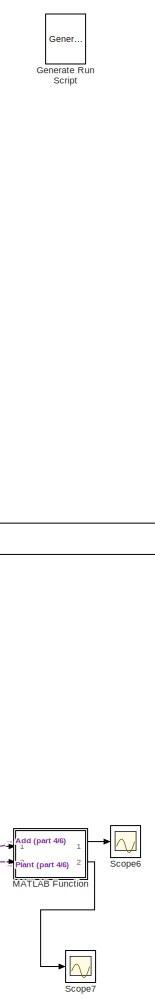
[diagram: root canvas - part 1/6, top right region]
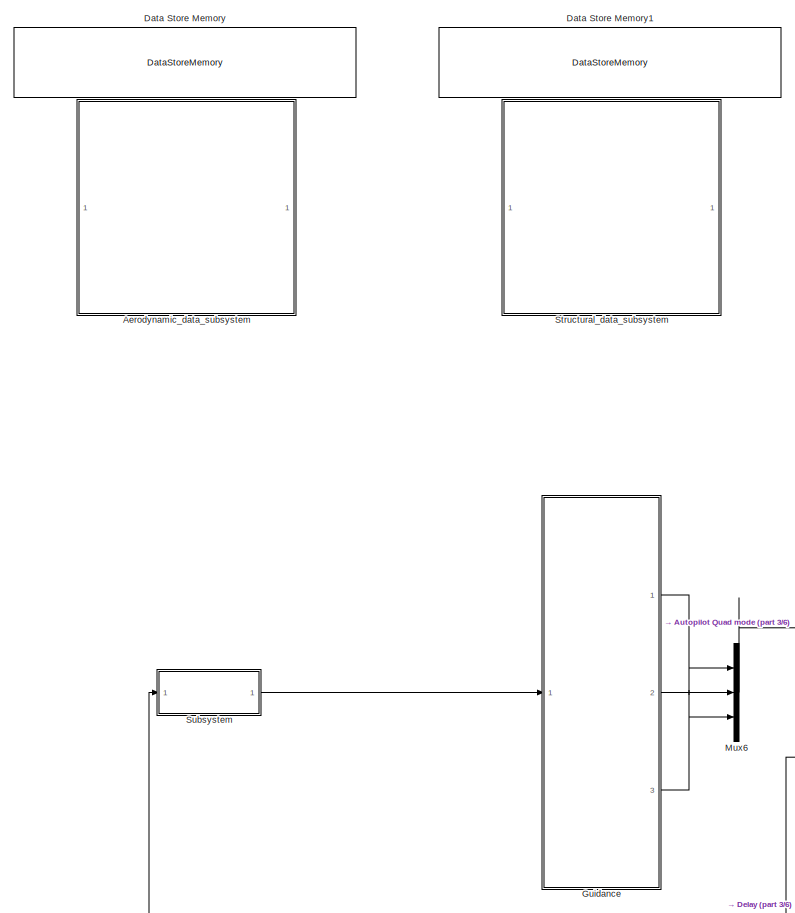
[diagram: root canvas - part 2/6, top left region]
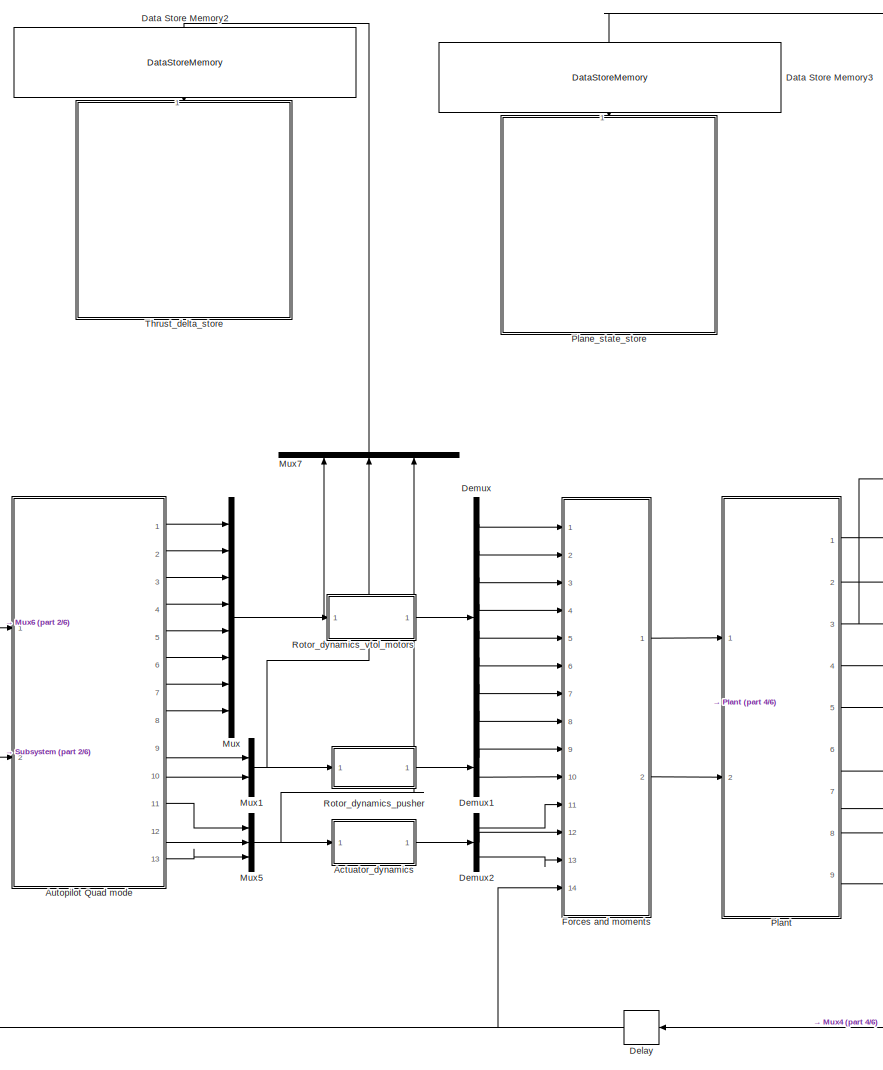
[diagram: root canvas - part 3/6, central region]
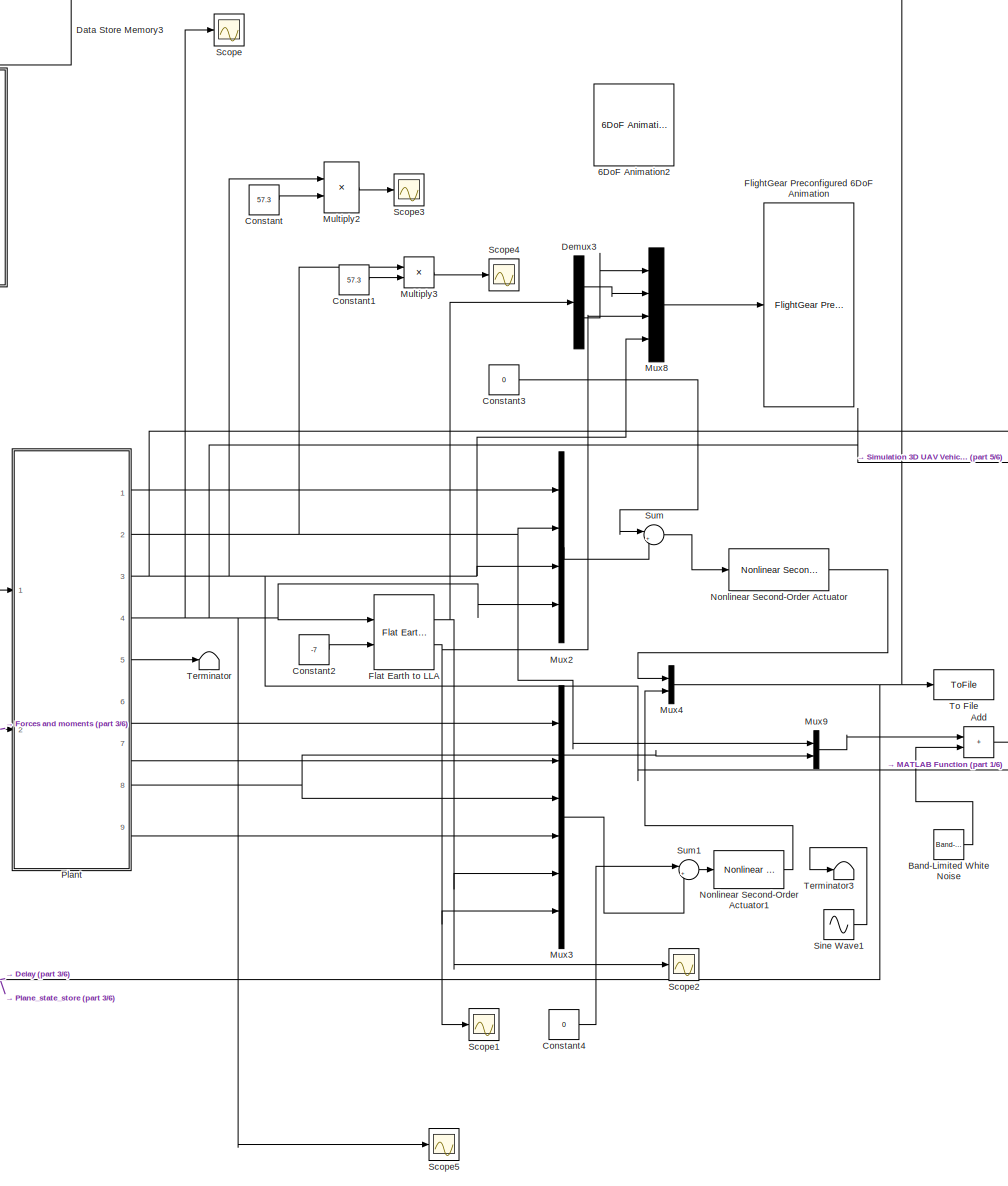
[diagram: root canvas - part 4/6, central region]
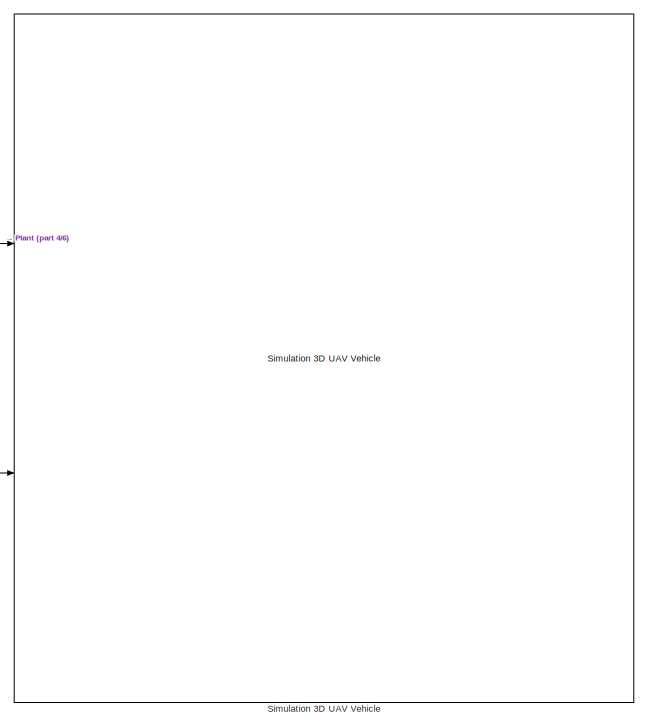
[diagram: root canvas - part 5/6, middle right region]
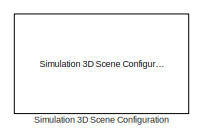
[diagram: root canvas - part 6/6, bottom right region]
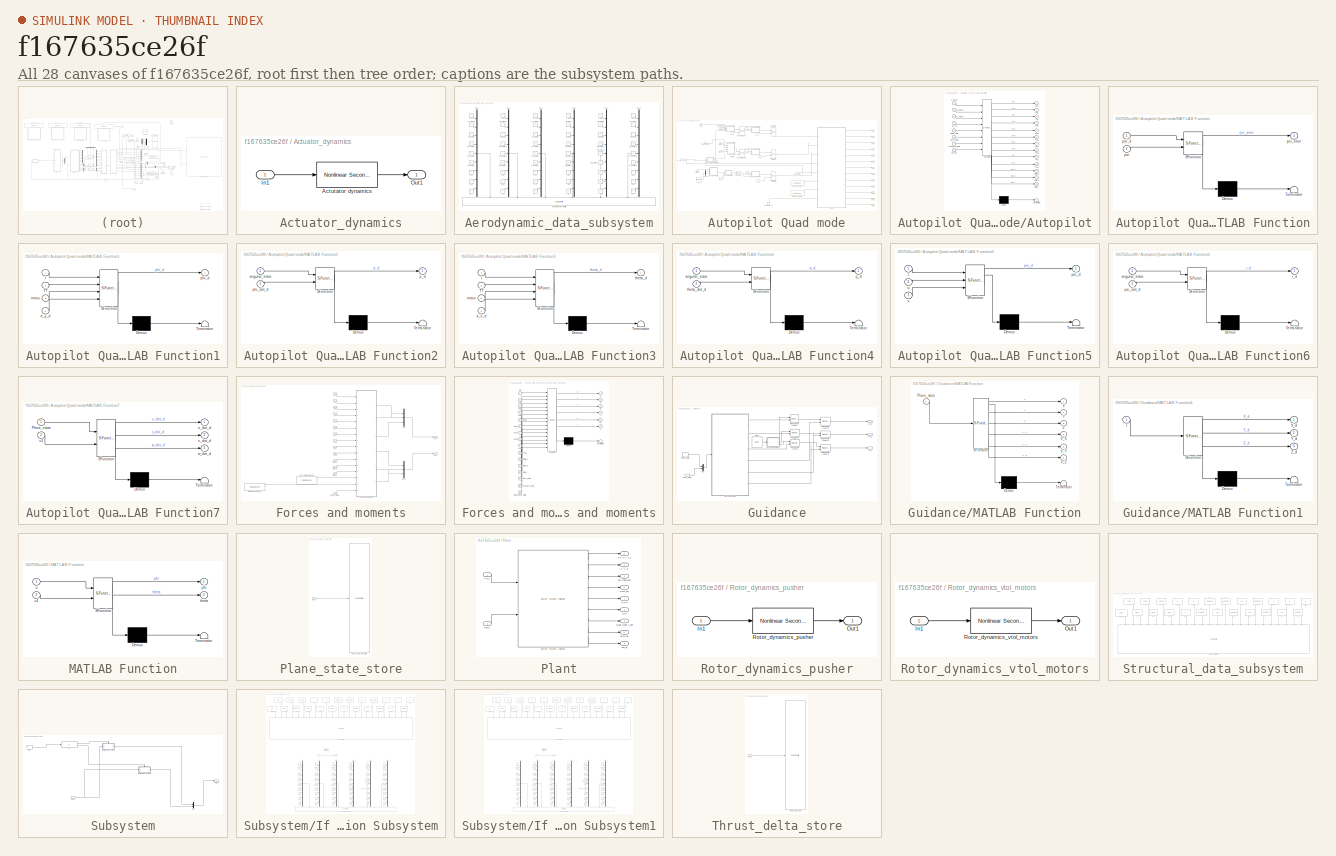
[diagram: thumbnail index - all 28 canvases of the model, root first then tree order]
MODEL slx_f167635ce26f
KIND model
CONFIG AbsTol = auto
CONFIG EnableMultiTasking = off
CONFIG FixedStep = 0.01
CONFIG MaxStep = auto
CONFIG MinStep = auto
CONFIG RelTol = 1e-3
CONFIG SampleTimeConstraint = Unconstrained
CONFIG SolverName = ode4
CONFIG StartTime = 0.0
CONFIG StopTime = 168
BLOCK [Reference] 6DoF Animation2  REF=aerolibanim/6DoF Animation
  Commented = on
  Ports = [2]
  SourceBlock = aerolibanim/6DoF Animation
  SourceProductBaseCode = AE
  SourceType = 6DoF_Animation
BLOCK [SubSystem] Actuator_dynamics
  Ports = [1, 1]
  RequestExecContextInheritance = off
BLOCK [Reference] Actuator_dynamics/Actutator dynamics  REF=aerolibactuator/Nonlinear Second-Order Actuator
  Ports = [1, 1]
  SourceBlock = aerolibactuator/Nonlinear Second-Order Actuator
  SourceProductBaseCode = AE
  SourceType = NonlinearSecondOrderActuator
BLOCK [Inport] Actuator_dynamics/In1
BLOCK [Outport] Actuator_dynamics/Out1
  VectorParamsAs1DForOutWhenUnconnected = off
BLOCK [Sum] Add
  IconShape = rectangular
  Ports = [2, 1]
BLOCK [SubSystem] Aerodynamic_data_subsystem
  Ports = []
  RequestExecContextInheritance = off
BLOCK [DataStoreWrite] Aerodynamic_data_subsystem/Aero Coffecients data write
  DataStoreElements = Aero_cofficients(1,:)#Aero_cofficients(2,:)#Aero_cofficients(3,:)#Aero_cofficients(4,:)#Aero_cofficients(5,:)#Aero_cofficients(6,:)
  DataStoreName = Aero_cofficients
  IndexOptions = Index vector (dialog)
  Indices = 1
  NameLocation = left
  OutputSizes = 1
  Ports = [6]
BLOCK [Constant] Aerodynamic_data_subsystem/CL_alpha
  Value = 0
BLOCK [Constant] Aerodynamic_data_subsystem/CL_beta
  Value = 0
BLOCK [Constant] Aerodynamic_data_subsystem/CL_delta_a
  Value = 0
BLOCK [Constant] Aerodynamic_data_subsystem/CL_delta_e
  Value = 0
BLOCK [Constant] Aerodynamic_data_subsystem/CL_delta_r
  Value = 0
BLOCK [Constant] Aerodynamic_data_subsystem/CLo
  Value = 0
BLOCK [Constant] Aerodynamic_data_subsystem/CLp
  Value = 0
BLOCK [Constant] Aerodynamic_data_subsystem/CLq
  Value = 0
BLOCK [Constant] Aerodynamic_data_subsystem/CLr
  Value = 0
BLOCK [Constant] Aerodynamic_data_subsystem/Cd_alpha
  Value = 0
BLOCK [Constant] Aerodynamic_data_subsystem/Cd_beta
  Value = 0
BLOCK [Constant] Aerodynamic_data_subsystem/Cd_delta_a
  Value = 0
BLOCK [Constant] Aerodynamic_data_subsystem/Cd_delta_e
  Value = 0
BLOCK [Constant] Aerodynamic_data_subsystem/Cd_delta_r
  Value = 0
BLOCK [Constant] Aerodynamic_data_subsystem/Cdo
  Value = 0
BLOCK [Constant] Aerodynamic_data_subsystem/Cdp
  Value = 0
BLOCK [Constant] Aerodynamic_data_subsystem/Cdq
  Value = 0
BLOCK [Constant] Aerodynamic_data_subsystem/Cdr
  Value = 0
BLOCK [Constant] Aerodynamic_data_subsystem/Cl_alpha
  Value = 0
BLOCK [Constant] Aerodynamic_data_subsystem/Cl_beta
  Value = 0
BLOCK [Constant] Aerodynamic_data_subsystem/Cl_delta_a
  Value = 0
BLOCK [Constant] Aerodynamic_data_subsystem/Cl_delta_e
  Value = 0
BLOCK [Constant] Aerodynamic_data_subsystem/Cl_delta_r
  Value = 0
BLOCK [Constant] Aerodynamic_data_subsystem/Clo
  Value = 0
BLOCK [Constant] Aerodynamic_data_subsystem/Clp
  Value = 0
BLOCK [Constant] Aerodynamic_data_subsystem/Clq
  Value = 0
BLOCK [Constant] Aerodynamic_data_subsystem/Clr
  Value = 0
BLOCK [Constant] Aerodynamic_data_subsystem/Cm_alpha
  Value = 0
BLOCK [Constant] Aerodynamic_data_subsystem/Cm_beta
  Value = 0
BLOCK [Constant] Aerodynamic_data_subsystem/Cm_delta_a
  Value = 0
BLOCK [Constant] Aerodynamic_data_subsystem/Cm_delta_e
  Value = 0
BLOCK [Constant] Aerodynamic_data_subsystem/Cm_delta_r
  Value = 0
BLOCK [Constant] Aerodynamic_data_subsystem/Cmo
  Value = 0
BLOCK [Constant] Aerodynamic_data_subsystem/Cmp
  Value = 0
BLOCK [Constant] Aerodynamic_data_subsystem/Cmq
  Value = 0
BLOCK [Constant] Aerodynamic_data_subsystem/Cmr
  Value = 0
BLOCK [Constant] Aerodynamic_data_subsystem/Cn_alpha
  Value = 0
BLOCK [Constant] Aerodynamic_data_subsystem/Cn_beta
  Value = 0
BLOCK [Constant] Aerodynamic_data_subsystem/Cn_delta_a
  Value = 0
BLOCK [Constant] Aerodynamic_data_subsystem/Cn_delta_e
  Value = 0
BLOCK [Constant] Aerodynamic_data_subsystem/Cn_delta_r
  Value = 0
BLOCK [Constant] Aerodynamic_data_subsystem/Cno
  Value = 0
BLOCK [Constant] Aerodynamic_data_subsystem/Cnp
  Value = 0
BLOCK [Constant] Aerodynamic_data_subsystem/Cnq
  Value = 0
BLOCK [Constant] Aerodynamic_data_subsystem/Cnr
  Value = 0
BLOCK [Constant] Aerodynamic_data_subsystem/Cy_alpha
  Value = 0
BLOCK [Constant] Aerodynamic_data_subsystem/Cy_beta
  Value = 0
BLOCK [Constant] Aerodynamic_data_subsystem/Cy_delta_a
  Value = 0
BLOCK [Constant] Aerodynamic_data_subsystem/Cy_delta_e
  Value = 0
BLOCK [Constant] Aerodynamic_data_subsystem/Cy_delta_r
  Value = 0
BLOCK [Constant] Aerodynamic_data_subsystem/Cyo
  Value = 0
BLOCK [Constant] Aerodynamic_data_subsystem/Cyp
  Value = 0
BLOCK [Constant] Aerodynamic_data_subsystem/Cyq
  Value = 0
BLOCK [Constant] Aerodynamic_data_subsystem/Cyr
  Value = 0
BLOCK [Mux] Aerodynamic_data_subsystem/Mux
  DisplayOption = bar
  Inputs = 9
  Ports = [9, 1]
BLOCK [Mux] Aerodynamic_data_subsystem/Mux1
  DisplayOption = bar
  Inputs = 9
  Ports = [9, 1]
BLOCK [Mux] Aerodynamic_data_subsystem/Mux2
  DisplayOption = bar
  Inputs = 9
  Ports = [9, 1]
BLOCK [Mux] Aerodynamic_data_subsystem/Mux3
  DisplayOption = bar
  Inputs = 9
  Ports = [9, 1]
BLOCK [Mux] Aerodynamic_data_subsystem/Mux4
  DisplayOption = bar
  Inputs = 9
  Ports = [9, 1]
BLOCK [Mux] Aerodynamic_data_subsystem/Mux6
  DisplayOption = bar
  Inputs = 9
  Ports = [9, 1]
BLOCK [SubSystem] Autopilot Quad mode
  Ports = [2, 13]
  RequestExecContextInheritance = off
BLOCK [DataStoreRead] Autopilot Quad mode/Aero_coffecients read1
  DataStoreElements = Aero_cofficients(:,:)
  DataStoreName = Aero_cofficients
  IndexOptions = Index vector (dialog)
  Indices = 1
  OutputSizes = 1
  Ports = [0, 1]
BLOCK [SubSystem] Autopilot Quad mode/Autopilot
  ErrorFcn = Stateflow.Translate.translate
  PermitHierarchicalResolution = ExplicitOnly
  Ports = [8, 13]
  RequestExecContextInheritance = off
  SFBlockType = MATLAB Function
  TreatAsAtomicUnit = on
BLOCK [Demux] Autopilot Quad mode/Autopilot/ Demux 
  Outputs = 1
  Ports = [1, 1]
BLOCK [S-Function] Autopilot Quad mode/Autopilot/ SFunction 
  EnableBusSupport = on
  FunctionName = sf_sfun
  PortCounts = [8 14]
  Ports = [8, 14]
  SFcnIsStateOwnerBlock = off
  SFunctionDeploymentMode = off
  Tag = Stateflow S-Function 3
BLOCK [Terminator] Autopilot Quad mode/Autopilot/ Terminator 
BLOCK [Inport] Autopilot Quad mode/Autopilot/Plane_state
  Port = 5
BLOCK [Inport] Autopilot Quad mode/Autopilot/Thrust
  Port = 8
BLOCK [Outport] Autopilot Quad mode/Autopilot/Tx10
  Port = 10
  VectorParamsAs1DForOutWhenUnconnected = off
BLOCK [Outport] Autopilot Quad mode/Autopilot/Tx9
  Port = 9
  VectorParamsAs1DForOutWhenUnconnected = off
BLOCK [Outport] Autopilot Quad mode/Autopilot/Tzb5
  Port = 5
  VectorParamsAs1DForOutWhenUnconnected = off
BLOCK [Outport] Autopilot Quad mode/Autopilot/Tzb6
  Port = 6
  VectorParamsAs1DForOutWhenUnconnected = off
BLOCK [Outport] Autopilot Quad mode/Autopilot/Tzb7
  Port = 7
  VectorParamsAs1DForOutWhenUnconnected = off
BLOCK [Outport] Autopilot Quad mode/Autopilot/Tzb8
  Port = 8
  VectorParamsAs1DForOutWhenUnconnected = off
BLOCK [Outport] Autopilot Quad mode/Autopilot/Tzf1
  VectorParamsAs1DForOutWhenUnconnected = off
BLOCK [Outport] Autopilot Quad mode/Autopilot/Tzf2
  Port = 2
  VectorParamsAs1DForOutWhenUnconnected = off
BLOCK [Outport] Autopilot Quad mode/Autopilot/Tzf3
  Port = 3
  VectorParamsAs1DForOutWhenUnconnected = off
BLOCK [Outport] Autopilot Quad mode/Autopilot/Tzf4
  Port = 4
  VectorParamsAs1DForOutWhenUnconnected = off
BLOCK [Inport] Autopilot Quad mode/Autopilot/acc_d
  Port = 4
BLOCK [Inport] Autopilot Quad mode/Autopilot/aero_data
  Port = 6
BLOCK [Outport] Autopilot Quad mode/Autopilot/delta_a
  Port = 12
  VectorParamsAs1DForOutWhenUnconnected = off
BLOCK [Outport] Autopilot Quad mode/Autopilot/delta_e
  Port = 11
  VectorParamsAs1DForOutWhenUnconnected = off
BLOCK [Outport] Autopilot Quad mode/Autopilot/delta_r
  Port = 13
  VectorParamsAs1DForOutWhenUnconnected = off
BLOCK [Inport] Autopilot Quad mode/Autopilot/p_dot_d
BLOCK [Inport] Autopilot Quad mode/Autopilot/q_dot_d
  Port = 2
BLOCK [Inport] Autopilot Quad mode/Autopilot/r_dot_d
  Port = 3
BLOCK [Inport] Autopilot Quad mode/Autopilot/structure_data
  Port = 7
BLOCK [Clock] Autopilot Quad mode/Clock
  Decimation = 200
  DisplayTime = on
BLOCK [Clock] Autopilot Quad mode/Clock1
  Decimation = 200
  DisplayTime = on
BLOCK [Clock] Autopilot Quad mode/Clock2
  Decimation = 200
BLOCK [DataStoreRead] Autopilot Quad mode/Data Store Read
  DataStoreName = Thrust_data_store
  IndexOptions = Index vector (dialog)
  Indices = 1
  OutputSizes = 1
  Ports = [0, 1]
BLOCK [DataStoreRead] Autopilot Quad mode/Data Store Read1
  DataStoreName = Thrust_data_store
  IndexOptions = Index vector (dialog)
  Indices = 1
  OutputSizes = 1
  Ports = [0, 1]
BLOCK [DataStoreRead] Autopilot Quad mode/Data Store Read2
  DataStoreElements = Thrust_data_store(:,:)
  DataStoreName = Thrust_data_store
  IndexOptions = Index vector (dialog)
  Indices = 1
  OutputSizes = 1
  Ports = [0, 1]
BLOCK [Demux] Autopilot Quad mode/Demux1
  Outputs = 2
  Ports = [1, 2]
BLOCK [SubSystem] Autopilot Quad mode/MATLAB Function
  ErrorFcn = Stateflow.Translate.translate
  PermitHierarchicalResolution = ExplicitOnly
  Ports = [2, 1]
  RequestExecContextInheritance = off
  SFBlockType = MATLAB Function
  TreatAsAtomicUnit = on
BLOCK [Demux] Autopilot Quad mode/MATLAB Function/ Demux 
  Outputs = 1
  Ports = [1, 1]
BLOCK [S-Function] Autopilot Quad mode/MATLAB Function/ SFunction 
  EnableBusSupport = on
  FunctionName = sf_sfun
  PortCounts = [2 2]
  Ports = [2, 2]
  SFcnIsStateOwnerBlock = off
  SFunctionDeploymentMode = off
  Tag = Stateflow S-Function 11
BLOCK [Terminator] Autopilot Quad mode/MATLAB Function/ Terminator 
BLOCK [Inport] Autopilot Quad mode/MATLAB Function/psi
  Port = 2
BLOCK [Inport] Autopilot Quad mode/MATLAB Function/psi_d
BLOCK [Outport] Autopilot Quad mode/MATLAB Function/psi_error
  VectorParamsAs1DForOutWhenUnconnected = off
BLOCK [SubSystem] Autopilot Quad mode/MATLAB Function1
  ErrorFcn = Stateflow.Translate.translate
  PermitHierarchicalResolution = ExplicitOnly
  Ports = [4, 1]
  RequestExecContextInheritance = off
  SFBlockType = MATLAB Function
  TreatAsAtomicUnit = on
BLOCK [Demux] Autopilot Quad mode/MATLAB Function1/ Demux 
  Outputs = 1
  Ports = [1, 1]
BLOCK [S-Function] Autopilot Quad mode/MATLAB Function1/ SFunction 
  EnableBusSupport = on
  FunctionName = sf_sfun
  PortCounts = [4 2]
  Ports = [4, 2]
  SFcnIsStateOwnerBlock = off
  SFunctionDeploymentMode = off
  Tag = Stateflow S-Function 5
BLOCK [Terminator] Autopilot Quad mode/MATLAB Function1/ Terminator 
BLOCK [Inport] Autopilot Quad mode/MATLAB Function1/TT
  Port = 2
BLOCK [Inport] Autopilot Quad mode/MATLAB Function1/a_y_d
  Port = 4
BLOCK [Inport] Autopilot Quad mode/MATLAB Function1/mass
  Port = 3
BLOCK [Outport] Autopilot Quad mode/MATLAB Function1/phi_d
  VectorParamsAs1DForOutWhenUnconnected = off
BLOCK [Inport] Autopilot Quad mode/MATLAB Function1/t
BLOCK [SubSystem] Autopilot Quad mode/MATLAB Function2
  ErrorFcn = Stateflow.Translate.translate
  PermitHierarchicalResolution = ExplicitOnly
  Ports = [2, 1]
  RequestExecContextInheritance = off
  SFBlockType = MATLAB Function
  TreatAsAtomicUnit = on
BLOCK [Demux] Autopilot Quad mode/MATLAB Function2/ Demux 
  Outputs = 1
  Ports = [1, 1]
BLOCK [S-Function] Autopilot Quad mode/MATLAB Function2/ SFunction 
  EnableBusSupport = on
  FunctionName = sf_sfun
  PortCounts = [2 2]
  Ports = [2, 2]
  SFcnIsStateOwnerBlock = off
  SFunctionDeploymentMode = off
  Tag = Stateflow S-Function 6
BLOCK [Terminator] Autopilot Quad mode/MATLAB Function2/ Terminator 
BLOCK [Inport] Autopilot Quad mode/MATLAB Function2/angular_state
BLOCK [Outport] Autopilot Quad mode/MATLAB Function2/p_d
  VectorParamsAs1DForOutWhenUnconnected = off
BLOCK [Inport] Autopilot Quad mode/MATLAB Function2/phi_dot_d
  Port = 2
BLOCK [SubSystem] Autopilot Quad mode/MATLAB Function3
  ErrorFcn = Stateflow.Translate.translate
  PermitHierarchicalResolution = ExplicitOnly
  Ports = [4, 1]
  RequestExecContextInheritance = off
  SFBlockType = MATLAB Function
  TreatAsAtomicUnit = on
BLOCK [Demux] Autopilot Quad mode/MATLAB Function3/ Demux 
  Outputs = 1
  Ports = [1, 1]
BLOCK [S-Function] Autopilot Quad mode/MATLAB Function3/ SFunction 
  EnableBusSupport = on
  FunctionName = sf_sfun
  PortCounts = [4 2]
  Ports = [4, 2]
  SFcnIsStateOwnerBlock = off
  SFunctionDeploymentMode = off
  Tag = Stateflow S-Function 7
BLOCK [Terminator] Autopilot Quad mode/MATLAB Function3/ Terminator 
BLOCK [Inport] Autopilot Quad mode/MATLAB Function3/TT
  Port = 2
BLOCK [Inport] Autopilot Quad mode/MATLAB Function3/a_x_d
  Port = 4
BLOCK [Inport] Autopilot Quad mode/MATLAB Function3/mass
  Port = 3
BLOCK [Inport] Autopilot Quad mode/MATLAB Function3/t
BLOCK [Outport] Autopilot Quad mode/MATLAB Function3/theta_d
  VectorParamsAs1DForOutWhenUnconnected = off
BLOCK [SubSystem] Autopilot Quad mode/MATLAB Function4
  ErrorFcn = Stateflow.Translate.translate
  PermitHierarchicalResolution = ExplicitOnly
  Ports = [2, 1]
  RequestExecContextInheritance = off
  SFBlockType = MATLAB Function
  TreatAsAtomicUnit = on
BLOCK [Demux] Autopilot Quad mode/MATLAB Function4/ Demux 
  Outputs = 1
  Ports = [1, 1]
BLOCK [S-Function] Autopilot Quad mode/MATLAB Function4/ SFunction 
  EnableBusSupport = on
  FunctionName = sf_sfun
  PortCounts = [2 2]
  Ports = [2, 2]
  SFcnIsStateOwnerBlock = off
  SFunctionDeploymentMode = off
  Tag = Stateflow S-Function 8
BLOCK [Terminator] Autopilot Quad mode/MATLAB Function4/ Terminator 
BLOCK [Inport] Autopilot Quad mode/MATLAB Function4/angular_state
BLOCK [Outport] Autopilot Quad mode/MATLAB Function4/q_d
  VectorParamsAs1DForOutWhenUnconnected = off
BLOCK [Inport] Autopilot Quad mode/MATLAB Function4/theta_dot_d
  Port = 2
BLOCK [SubSystem] Autopilot Quad mode/MATLAB Function5
  ErrorFcn = Stateflow.Translate.translate
  PermitHierarchicalResolution = ExplicitOnly
  Ports = [3, 1]
  RequestExecContextInheritance = off
  SFBlockType = MATLAB Function
  TreatAsAtomicUnit = on
BLOCK [Demux] Autopilot Quad mode/MATLAB Function5/ Demux 
  Outputs = 1
  Ports = [1, 1]
BLOCK [S-Function] Autopilot Quad mode/MATLAB Function5/ SFunction 
  EnableBusSupport = on
  FunctionName = sf_sfun
  PortCounts = [3 2]
  Ports = [3, 2]
  SFcnIsStateOwnerBlock = off
  SFunctionDeploymentMode = off
  Tag = Stateflow S-Function 9
BLOCK [Terminator] Autopilot Quad mode/MATLAB Function5/ Terminator 
BLOCK [Outport] Autopilot Quad mode/MATLAB Function5/psi_d
  VectorParamsAs1DForOutWhenUnconnected = off
BLOCK [Inport] Autopilot Quad mode/MATLAB Function5/t
BLOCK [Inport] Autopilot Quad mode/MATLAB Function5/u
  Port = 2
BLOCK [Inport] Autopilot Quad mode/MATLAB Function5/v
  Port = 3
BLOCK [SubSystem] Autopilot Quad mode/MATLAB Function6
  ErrorFcn = Stateflow.Translate.translate
  PermitHierarchicalResolution = ExplicitOnly
  Ports = [2, 1]
  RequestExecContextInheritance = off
  SFBlockType = MATLAB Function
  TreatAsAtomicUnit = on
BLOCK [Demux] Autopilot Quad mode/MATLAB Function6/ Demux 
  Outputs = 1
  Ports = [1, 1]
BLOCK [S-Function] Autopilot Quad mode/MATLAB Function6/ SFunction 
  EnableBusSupport = on
  FunctionName = sf_sfun
  PortCounts = [2 2]
  Ports = [2, 2]
  SFcnIsStateOwnerBlock = off
  SFunctionDeploymentMode = off
  Tag = Stateflow S-Function 10
BLOCK [Terminator] Autopilot Quad mode/MATLAB Function6/ Terminator 
BLOCK [Inport] Autopilot Quad mode/MATLAB Function6/angular_state
BLOCK [Inport] Autopilot Quad mode/MATLAB Function6/psi_dot_d
  Port = 2
BLOCK [Outport] Autopilot Quad mode/MATLAB Function6/r_d
  VectorParamsAs1DForOutWhenUnconnected = off
BLOCK [SubSystem] Autopilot Quad mode/MATLAB Function7
  ErrorFcn = Stateflow.Translate.translate
  PermitHierarchicalResolution = ExplicitOnly
  Ports = [2, 3]
  RequestExecContextInheritance = off
  SFBlockType = MATLAB Function
  TreatAsAtomicUnit = on
BLOCK [Demux] Autopilot Quad mode/MATLAB Function7/ Demux 
  Outputs = 1
  Ports = [1, 1]
BLOCK [S-Function] Autopilot Quad mode/MATLAB Function7/ SFunction 
  EnableBusSupport = on
  FunctionName = sf_sfun
  PortCounts = [2 4]
  Ports = [2, 4]
  SFcnIsStateOwnerBlock = off
  SFunctionDeploymentMode = off
  Tag = Stateflow S-Function 12
BLOCK [Terminator] Autopilot Quad mode/MATLAB Function7/ Terminator 
BLOCK [Inport] Autopilot Quad mode/MATLAB Function7/Plane_state
BLOCK [Inport] Autopilot Quad mode/MATLAB Function7/u1
  Port = 2
BLOCK [Outport] Autopilot Quad mode/MATLAB Function7/u_dot_d
  VectorParamsAs1DForOutWhenUnconnected = off
BLOCK [Outport] Autopilot Quad mode/MATLAB Function7/v_dot_d
  Port = 2
  VectorParamsAs1DForOutWhenUnconnected = off
BLOCK [Outport] Autopilot Quad mode/MATLAB Function7/w_dot_d
  Port = 3
  VectorParamsAs1DForOutWhenUnconnected = off
BLOCK [Reference] Autopilot Quad mode/PID Controller  REF=pid_lib/PID Controller
  Ports = [1, 1]
  SourceBlock = pid_lib/PID Controller
  SourceProductBaseCode = SL
  SourceType = PID 1dof
BLOCK [Reference] Autopilot Quad mode/PID Controller (2DOF)  REF=pid_lib/PID Controller (2DOF)
  Ports = [2, 1]
  SourceBlock = pid_lib/PID Controller (2DOF)
  SourceProductBaseCode = SL
  SourceType = PID 2dof
BLOCK [Reference] Autopilot Quad mode/PID Controller (2DOF)1  REF=pid_lib/PID Controller (2DOF)
  Ports = [2, 1]
  SourceBlock = pid_lib/PID Controller (2DOF)
  SourceProductBaseCode = SL
  SourceType = PID 2dof
BLOCK [Reference] Autopilot Quad mode/PID Controller (2DOF)2  REF=pid_lib/PID Controller (2DOF)
  Ports = [2, 1]
  SourceBlock = pid_lib/PID Controller (2DOF)
  SourceProductBaseCode = SL
  SourceType = PID 2dof
BLOCK [Reference] Autopilot Quad mode/PID Controller (2DOF)3  REF=pid_lib/PID Controller (2DOF)
  Ports = [2, 1]
  SourceBlock = pid_lib/PID Controller (2DOF)
  SourceProductBaseCode = SL
  SourceType = PID 2dof
BLOCK [Reference] Autopilot Quad mode/PID Controller (2DOF)5  REF=pid_lib/PID Controller (2DOF)
  Ports = [2, 1]
  SourceBlock = pid_lib/PID Controller (2DOF)
  SourceProductBaseCode = SL
  SourceType = PID 2dof
BLOCK [Inport] Autopilot Quad mode/Plane_states
  Port = 2
BLOCK [DataStoreRead] Autopilot Quad mode/Structure_data_read
  DataStoreElements = Structural_data(:,:)
  DataStoreName = Structural_data
  IndexOptions = Index vector (dialog)
  Indices = 1
  OutputSizes = 1
  Ports = [0, 1]
BLOCK [Terminator] Autopilot Quad mode/Terminator
BLOCK [Outport] Autopilot Quad mode/Tx10
  Port = 10
  VectorParamsAs1DForOutWhenUnconnected = off
BLOCK [Outport] Autopilot Quad mode/Tx9
  Port = 9
  VectorParamsAs1DForOutWhenUnconnected = off
BLOCK [Outport] Autopilot Quad mode/Tzb5
  Port = 5
  VectorParamsAs1DForOutWhenUnconnected = off
BLOCK [Outport] Autopilot Quad mode/Tzb6
  Port = 6
  VectorParamsAs1DForOutWhenUnconnected = off
BLOCK [Outport] Autopilot Quad mode/Tzb7
  Port = 7
  VectorParamsAs1DForOutWhenUnconnected = off
BLOCK [Outport] Autopilot Quad mode/Tzb8
  Port = 8
  VectorParamsAs1DForOutWhenUnconnected = off
BLOCK [Outport] Autopilot Quad mode/Tzf1
  VectorParamsAs1DForOutWhenUnconnected = off
BLOCK [Outport] Autopilot Quad mode/Tzf2
  Port = 2
  VectorParamsAs1DForOutWhenUnconnected = off
BLOCK [Outport] Autopilot Quad mode/Tzf3
  Port = 3
  VectorParamsAs1DForOutWhenUnconnected = off
BLOCK [Outport] Autopilot Quad mode/Tzf4
  Port = 4
  VectorParamsAs1DForOutWhenUnconnected = off
BLOCK [DataStoreRead] Autopilot Quad mode/ang_st
  DataStoreElements = Plane_state_store(1,4:9)
  DataStoreName = Plane_state_store
  IndexOptions = Index vector (dialog)
  Indices = 1
  OutputSizes = 1
  Ports = [0, 1]
BLOCK [DataStoreRead] Autopilot Quad mode/ang_st1
  DataStoreElements = Plane_state_store(1,4:9)
  DataStoreName = Plane_state_store
  IndexOptions = Index vector (dialog)
  Indices = 1
  OutputSizes = 1
  Ports = [0, 1]
BLOCK [DataStoreRead] Autopilot Quad mode/ang_st2
  DataStoreElements = Plane_state_store(1,4:9)
  DataStoreName = Plane_state_store
  IndexOptions = Index vector (dialog)
  Indices = 1
  OutputSizes = 1
  Ports = [0, 1]
BLOCK [Inport] Autopilot Quad mode/ax_d,ay_d,az_d
BLOCK [Outport] Autopilot Quad mode/delta_a
  Port = 12
  VectorParamsAs1DForOutWhenUnconnected = off
BLOCK [Outport] Autopilot Quad mode/delta_e
  Port = 11
  VectorParamsAs1DForOutWhenUnconnected = off
BLOCK [Outport] Autopilot Quad mode/delta_r
  Port = 13
  VectorParamsAs1DForOutWhenUnconnected = off
BLOCK [DataStoreRead] Autopilot Quad mode/mass
  DataStoreElements = Structural_data(1,1)
  DataStoreName = Structural_data
  IndexOptions = Index vector (dialog)
  Indices = 1
  OutputSizes = 1
  Ports = [0, 1]
BLOCK [DataStoreRead] Autopilot Quad mode/mass1
  DataStoreElements = Structural_data(1,1)
  DataStoreName = Structural_data
  IndexOptions = Index vector (dialog)
  Indices = 1
  OutputSizes = 1
  Ports = [0, 1]
BLOCK [DataStoreRead] Autopilot Quad mode/p
  DataStoreElements = Plane_state_store(1,4)
  DataStoreName = Plane_state_store
  IndexOptions = Index vector (dialog)
  Indices = 1
  OutputSizes = 1
  Ports = [0, 1]
BLOCK [DataStoreRead] Autopilot Quad mode/phi
  DataStoreElements = Plane_state_store(1,7)
  DataStoreName = Plane_state_store
  IndexOptions = Index vector (dialog)
  Indices = 1
  OutputSizes = 1
  Ports = [0, 1]
BLOCK [DataStoreRead] Autopilot Quad mode/psi
  DataStoreElements = Plane_state_store(1,9)
  DataStoreName = Plane_state_store
  IndexOptions = Index vector (dialog)
  Indices = 1
  OutputSizes = 1
  Ports = [0, 1]
BLOCK [DataStoreRead] Autopilot Quad mode/q 
  DataStoreElements = Plane_state_store(1,5)
  DataStoreName = Plane_state_store
  IndexOptions = Index vector (dialog)
  Indices = 1
  OutputSizes = 1
  Ports = [0, 1]
BLOCK [DataStoreRead] Autopilot Quad mode/r
  DataStoreElements = Plane_state_store(1,6)
  DataStoreName = Plane_state_store
  IndexOptions = Index vector (dialog)
  Indices = 1
  OutputSizes = 1
  Ports = [0, 1]
BLOCK [DataStoreRead] Autopilot Quad mode/theta
  DataStoreElements = Plane_state_store(1,8)
  DataStoreName = Plane_state_store
  IndexOptions = Index vector (dialog)
  Indices = 1
  OutputSizes = 1
  Ports = [0, 1]
BLOCK [DataStoreRead] Autopilot Quad mode/u,v
  DataStoreElements = Plane_state_store(1,1:2)
  DataStoreName = Plane_state_store
  IndexOptions = Index vector (dialog)
  Indices = 1
  OutputSizes = 1
  Ports = [0, 1]
BLOCK [Reference] Band-Limited White Noise  REF=simulink/Sources/Band-Limited
White Noise
  Ports = [0, 1]
  SourceBlock = simulink/Sources/Band-Limited\nWhite Noise
  SourceProductBaseCode = SL
  SourceType = Band-Limited White Noise.
BLOCK [Constant] Constant
  Value = 57.3
BLOCK [Constant] Constant1
  Value = 57.3
BLOCK [Constant] Constant2
  Value = -7
BLOCK [Constant] Constant3
  Value = 0
BLOCK [Constant] Constant4
  Value = 0
BLOCK [DataStoreMemory] Data Store Memory
  DataStoreName = Aero_cofficients
  InitialValue = [0 0 0 0 0 0 0 0 0;0 0 0 0 0 0 0 0 0;0 0 0 0 0 0 0 0 0;0 0 0 0 0 0 0 0 0;0 0 0 0 0 0 0 0 0;0 0 0 0 0 0 0 0 0]
  ReadBeforeWriteMsg = warning
  ShareAcrossModelInstances = on
  ShowAdditionalParam = off
  VectorParams1D = off
  WriteAfterReadMsg = warning
  WriteAfterWriteMsg = warning
BLOCK [DataStoreMemory] Data Store Memory1
  DataStoreName = Structural_data
  InitialValue = [25.0,0,0,0,0,0,0,0,0,0,0,0,0,0,0,0,0,0,0,0,0,0,0,0]
  ReadBeforeWriteMsg = warning
  ShareAcrossModelInstances = on
  ShowAdditionalParam = off
  VectorParams1D = off
  WriteAfterReadMsg = warning
  WriteAfterWriteMsg = warning
BLOCK [DataStoreMemory] Data Store Memory2
  DataStoreName = Thrust_data_store
  InitialValue = [0,0,0,0,0,0,0,0,0,0,0,0,0]
  ReadBeforeWriteMsg = warning
  ShareAcrossModelInstances = on
  ShowAdditionalParam = off
  VectorParams1D = off
  WriteAfterReadMsg = warning
  WriteAfterWriteMsg = warning
BLOCK [DataStoreMemory] Data Store Memory3
  DataStoreName = Plane_state_store
  InitialValue = [0.0,0,0,0,0,0,0,0,30/57.3,0,0,0,0,0,0,0,0,0,0,0,0,0,0,0,0,0,0]
  ReadBeforeWriteMsg = warning
  ShareAcrossModelInstances = on
  ShowAdditionalParam = off
  VectorParams1D = off
  WriteAfterReadMsg = warning
  WriteAfterWriteMsg = warning
BLOCK [Delay] Delay
  DelayLength = 1
  InputPortMap = u0
  NameLocation = top
  Ports = [1, 1]
BLOCK [Demux] Demux
  Outputs = 8
  Ports = [1, 8]
BLOCK [Demux] Demux1
  Outputs = 2
  Ports = [1, 2]
BLOCK [Demux] Demux2
  Outputs = 3
  Ports = [1, 3]
BLOCK [Demux] Demux3
  Outputs = 2
  Ports = [1, 2]
BLOCK [Reference] Flat Earth to LLA  REF=aerolibtransform2/Flat Earth to LLA
  Ports = [2, 2]
  SourceBlock = aerolibtransform2/Flat Earth to LLA
  SourceProductBaseCode = AE
  SourceType = Flat Earth to LLA
BLOCK [Reference] FlightGear Preconfigured 6DoF Animation  REF=aerolibfltsims/FlightGear
Preconfigured
6DoF Animation
  AttributesFormatString = Version Selected: %<xFlightGearVersion>
  Ports = [1]
  SourceBlock = aerolibfltsims/FlightGear\nPreconfigured\n6DoF Animation
  SourceProductBaseCode = AE
  SourceType = FlightGearQuick6DoFAnimation
BLOCK [SubSystem] Forces and moments
  Ports = [14, 2]
  RequestExecContextInheritance = off
BLOCK [DataStoreRead] Forces and moments/Aero_coffecients read1
  DataStoreElements = Aero_cofficients(:,:)
  DataStoreName = Aero_cofficients
  IndexOptions = Index vector (dialog)
  Indices = 1
  OutputSizes = 1
  Ports = [0, 1]
BLOCK [SubSystem] Forces and moments/Forces and moments
  ErrorFcn = Stateflow.Translate.translate
  PermitHierarchicalResolution = ExplicitOnly
  Ports = [16, 6]
  RequestExecContextInheritance = off
  SFBlockType = MATLAB Function
  TreatAsAtomicUnit = on
BLOCK [Demux] Forces and moments/Forces and moments/ Demux 
  Outputs = 1
  Ports = [1, 1]
BLOCK [S-Function] Forces and moments/Forces and moments/ SFunction 
  EnableBusSupport = on
  FunctionName = sf_sfun
  PortCounts = [16 7]
  Ports = [16, 7]
  SFcnIsStateOwnerBlock = off
  SFunctionDeploymentMode = off
  Tag = Stateflow S-Function 2
BLOCK [Terminator] Forces and moments/Forces and moments/ Terminator 
BLOCK [Inport] Forces and moments/Forces and moments/Tx10
  Port = 10
BLOCK [Inport] Forces and moments/Forces and moments/Tx9
  Port = 9
BLOCK [Inport] Forces and moments/Forces and moments/Tzb5
  Port = 5
BLOCK [Inport] Forces and moments/Forces and moments/Tzb6
  Port = 6
BLOCK [Inport] Forces and moments/Forces and moments/Tzb7
  Port = 7
BLOCK [Inport] Forces and moments/Forces and moments/Tzb8
  Port = 8
BLOCK [Inport] Forces and moments/Forces and moments/Tzf1
BLOCK [Inport] Forces and moments/Forces and moments/Tzf2
  Port = 2
BLOCK [Inport] Forces and moments/Forces and moments/Tzf3
  Port = 3
BLOCK [Inport] Forces and moments/Forces and moments/Tzf4
  Port = 4
BLOCK [Inport] Forces and moments/Forces and moments/aero_data
  Port = 14
BLOCK [Inport] Forces and moments/Forces and moments/delta_a
  Port = 12
BLOCK [Inport] Forces and moments/Forces and moments/delta_e
  Port = 11
BLOCK [Inport] Forces and moments/Forces and moments/delta_r
  Port = 13
BLOCK [Outport] Forces and moments/Forces and moments/fx
  VectorParamsAs1DForOutWhenUnconnected = off
BLOCK [Outport] Forces and moments/Forces and moments/fy
  Port = 2
  VectorParamsAs1DForOutWhenUnconnected = off
BLOCK [Outport] Forces and moments/Forces and moments/fz
  Port = 3
  VectorParamsAs1DForOutWhenUnconnected = off
BLOCK [Inport] Forces and moments/Forces and moments/ideal_Plane_state
  Port = 16
BLOCK [Outport] Forces and moments/Forces and moments/l
  Port = 4
  VectorParamsAs1DForOutWhenUnconnected = off
BLOCK [Outport] Forces and moments/Forces and moments/m
  Port = 5
  VectorParamsAs1DForOutWhenUnconnected = off
BLOCK [Outport] Forces and moments/Forces and moments/n
  Port = 6
  VectorParamsAs1DForOutWhenUnconnected = off
BLOCK [Inport] Forces and moments/Forces and moments/structure_data
  Port = 15
BLOCK [Outport] Forces and moments/Fxyz
  VectorParamsAs1DForOutWhenUnconnected = off
BLOCK [Mux] Forces and moments/Mux
  DisplayOption = bar
  Inputs = 3
  Ports = [3, 1]
BLOCK [Mux] Forces and moments/Mux1
  DisplayOption = bar
  Inputs = 3
  Ports = [3, 1]
BLOCK [Outport] Forces and moments/Mxyz
  Port = 2
  VectorParamsAs1DForOutWhenUnconnected = off
BLOCK [Inport] Forces and moments/Plane_states
  Port = 14
BLOCK [DataStoreRead] Forces and moments/Structure_data_read
  DataStoreElements = Structural_data(:,:)
  DataStoreName = Structural_data
  IndexOptions = Index vector (dialog)
  Indices = 1
  OutputSizes = 1
  Ports = [0, 1]
BLOCK [Inport] Forces and moments/Tx10
  Port = 10
BLOCK [Inport] Forces and moments/Tx9
  Port = 9
BLOCK [Inport] Forces and moments/Tzb5
  Port = 5
BLOCK [Inport] Forces and moments/Tzb6
  Port = 6
BLOCK [Inport] Forces and moments/Tzb7
  Port = 7
BLOCK [Inport] Forces and moments/Tzb8
  Port = 8
BLOCK [Inport] Forces and moments/Tzf1
BLOCK [Inport] Forces and moments/Tzf2
  Port = 2
BLOCK [Inport] Forces and moments/Tzf3 
  Port = 3
BLOCK [Inport] Forces and moments/Tzf4
  Port = 4
BLOCK [Inport] Forces and moments/delta_a
  Port = 12
BLOCK [Inport] Forces and moments/delta_e
  Port = 11
BLOCK [Inport] Forces and moments/delta_r
  Port = 13
BLOCK [Reference] Generate Run Script  REF=aerolibfltsims/Generate
Run Script
  Ports = []
  SourceBlock = aerolibfltsims/Generate\nRun Script
  SourceProductBaseCode = AE
  SourceType = Generate FlightGear Run Script
BLOCK [SubSystem] Guidance
  Ports = [1, 3]
  RequestExecContextInheritance = off
BLOCK [Clock] Guidance/Clock
  Decimation = 200
  DisplayTime = on
BLOCK [SubSystem] Guidance/MATLAB Function
  ErrorFcn = Stateflow.Translate.translate
  PermitHierarchicalResolution = ExplicitOnly
  Ports = [1, 6]
  RequestExecContextInheritance = off
  SFBlockType = MATLAB Function
  TreatAsAtomicUnit = on
BLOCK [Demux] Guidance/MATLAB Function/ Demux 
  Outputs = 1
  Ports = [1, 1]
BLOCK [S-Function] Guidance/MATLAB Function/ SFunction 
  EnableBusSupport = on
  FunctionName = sf_sfun
  PortCounts = [1 7]
  Ports = [1, 7]
  SFcnIsStateOwnerBlock = off
  SFunctionDeploymentMode = off
  Tag = Stateflow S-Function 1
BLOCK [Terminator] Guidance/MATLAB Function/ Terminator 
BLOCK [Inport] Guidance/MATLAB Function/Plane_state
BLOCK [Outport] Guidance/MATLAB Function/V_X
  Port = 4
  VectorParamsAs1DForOutWhenUnconnected = off
BLOCK [Outport] Guidance/MATLAB Function/V_Y
  Port = 5
  VectorParamsAs1DForOutWhenUnconnected = off
BLOCK [Outport] Guidance/MATLAB Function/V_Z
  Port = 6
  VectorParamsAs1DForOutWhenUnconnected = off
BLOCK [Outport] Guidance/MATLAB Function/X
  VectorParamsAs1DForOutWhenUnconnected = off
BLOCK [Outport] Guidance/MATLAB Function/Y
  Port = 2
  VectorParamsAs1DForOutWhenUnconnected = off
BLOCK [Outport] Guidance/MATLAB Function/Z
  Port = 3
  VectorParamsAs1DForOutWhenUnconnected = off
BLOCK [SubSystem] Guidance/MATLAB Function1
  ErrorFcn = Stateflow.Translate.translate
  PermitHierarchicalResolution = ExplicitOnly
  Ports = [1, 3]
  RequestExecContextInheritance = off
  SFBlockType = MATLAB Function
  TreatAsAtomicUnit = on
BLOCK [Demux] Guidance/MATLAB Function1/ Demux 
  Outputs = 1
  Ports = [1, 1]
BLOCK [S-Function] Guidance/MATLAB Function1/ SFunction 
  EnableBusSupport = on
  FunctionName = sf_sfun
  PortCounts = [1 4]
  Ports = [1, 4]
  SFcnIsStateOwnerBlock = off
  SFunctionDeploymentMode = off
  Tag = Stateflow S-Function 4
BLOCK [Terminator] Guidance/MATLAB Function1/ Terminator 
BLOCK [Outport] Guidance/MATLAB Function1/X_d
  VectorParamsAs1DForOutWhenUnconnected = off
BLOCK [Outport] Guidance/MATLAB Function1/Y_d
  Port = 2
  VectorParamsAs1DForOutWhenUnconnected = off
BLOCK [Outport] Guidance/MATLAB Function1/Z_d
  Port = 3
  VectorParamsAs1DForOutWhenUnconnected = off
BLOCK [Inport] Guidance/MATLAB Function1/t
BLOCK [Mux] Guidance/Mux
  DisplayOption = bar
  Inputs = 2
  Ports = [2, 1]
BLOCK [Reference] Guidance/PID Controller (2DOF)  REF=pid_lib/PID Controller (2DOF)
  Ports = [2, 1]
  SourceBlock = pid_lib/PID Controller (2DOF)
  SourceProductBaseCode = SL
  SourceType = PID 2dof
BLOCK [Reference] Guidance/PID Controller (2DOF)1  REF=pid_lib/PID Controller (2DOF)
  Ports = [2, 1]
  SourceBlock = pid_lib/PID Controller (2DOF)
  SourceProductBaseCode = SL
  SourceType = PID 2dof
BLOCK [Reference] Guidance/PID Controller (2DOF)2  REF=pid_lib/PID Controller (2DOF)
  Ports = [2, 1]
  SourceBlock = pid_lib/PID Controller (2DOF)
  SourceProductBaseCode = SL
  SourceType = PID 2dof
BLOCK [Reference] Guidance/PID Controller (2DOF)3  REF=pid_lib/PID Controller (2DOF)
  Ports = [2, 1]
  SourceBlock = pid_lib/PID Controller (2DOF)
  SourceProductBaseCode = SL
  SourceType = PID 2dof
BLOCK [Reference] Guidance/PID Controller (2DOF)4  REF=pid_lib/PID Controller (2DOF)
  Ports = [2, 1]
  SourceBlock = pid_lib/PID Controller (2DOF)
  SourceProductBaseCode = SL
  SourceType = PID 2dof
BLOCK [Reference] Guidance/PID Controller (2DOF)6  REF=pid_lib/PID Controller (2DOF)
  Ports = [2, 1]
  SourceBlock = pid_lib/PID Controller (2DOF)
  SourceProductBaseCode = SL
  SourceType = PID 2dof
BLOCK [Inport] Guidance/Plane_states
BLOCK [Outport] Guidance/aX_d
  VectorParamsAs1DForOutWhenUnconnected = off
BLOCK [Outport] Guidance/aY_d
  Port = 2
  VectorParamsAs1DForOutWhenUnconnected = off
BLOCK [Outport] Guidance/aZ_d
  Port = 3
  VectorParamsAs1DForOutWhenUnconnected = off
BLOCK [DataStoreRead] Guidance/plane_state
  DataStoreElements = Plane_state_store(:,:)
  DataStoreName = Plane_state_store
  IndexOptions = Index vector (dialog)
  Indices = 1
  OutputSizes = 1
  Ports = [0, 1]
BLOCK [SubSystem] MATLAB Function
  ErrorFcn = Stateflow.Translate.translate
  PermitHierarchicalResolution = ExplicitOnly
  Ports = [2, 2]
  RequestExecContextInheritance = off
  SFBlockType = MATLAB Function
  TreatAsAtomicUnit = on
BLOCK [Demux] MATLAB Function/ Demux 
  Outputs = 1
  Ports = [1, 1]
BLOCK [S-Function] MATLAB Function/ SFunction 
  EnableBusSupport = on
  FunctionName = sf_sfun
  PortCounts = [2 3]
  Ports = [2, 3]
  SFcnIsStateOwnerBlock = off
  SFunctionDeploymentMode = off
  Tag = Stateflow S-Function 13
BLOCK [Terminator] MATLAB Function/ Terminator 
BLOCK [Outport] MATLAB Function/phi
  VectorParamsAs1DForOutWhenUnconnected = off
BLOCK [Outport] MATLAB Function/theta
  Port = 2
  VectorParamsAs1DForOutWhenUnconnected = off
BLOCK [Inport] MATLAB Function/u
BLOCK [Inport] MATLAB Function/u1
  Port = 2
BLOCK [Product] Multiply2
  Ports = [2, 1]
BLOCK [Product] Multiply3
  Ports = [2, 1]
BLOCK [Mux] Mux
  DisplayOption = bar
  Inputs = 8
  Ports = [8, 1]
BLOCK [Mux] Mux1
  DisplayOption = bar
  Inputs = 2
  Ports = [2, 1]
BLOCK [Mux] Mux2
  DisplayOption = bar
  Ports = [4, 1]
BLOCK [Mux] Mux3
  DisplayOption = bar
  Inputs = 6
  Ports = [6, 1]
BLOCK [Mux] Mux4
  DisplayOption = bar
  Inputs = 2
  Ports = [2, 1]
BLOCK [Mux] Mux5
  DisplayOption = bar
  Inputs = 3
  Ports = [3, 1]
BLOCK [Mux] Mux6
  DisplayOption = bar
  Inputs = 3
  Ports = [3, 1]
BLOCK [Mux] Mux7
  DisplayOption = bar
  Inputs = 3
  NameLocation = right
  Ports = [3, 1]
BLOCK [Mux] Mux8
  DisplayOption = bar
  Ports = [4, 1]
BLOCK [Mux] Mux9
  DisplayOption = bar
  Inputs = 2
  Ports = [2, 1]
BLOCK [Reference] Nonlinear Second-Order Actuator  REF=aerolibactuator/Nonlinear Second-Order Actuator
  Commented = through
  Ports = [1, 1]
  SourceBlock = aerolibactuator/Nonlinear Second-Order Actuator
  SourceProductBaseCode = AE
  SourceType = NonlinearSecondOrderActuator
BLOCK [Reference] Nonlinear Second-Order Actuator1  REF=aerolibactuator/Nonlinear Second-Order Actuator
  Commented = through
  Ports = [1, 1]
  SourceBlock = aerolibactuator/Nonlinear Second-Order Actuator
  SourceProductBaseCode = AE
  SourceType = NonlinearSecondOrderActuator
BLOCK [SubSystem] Plane_state_store
  NameLocation = left
  Ports = [1]
  RequestExecContextInheritance = off
BLOCK [Inport] Plane_state_store/Input
BLOCK [DataStoreWrite] Plane_state_store/Plane_state_data_write
  DataStoreElements = Plane_state_store(:,:)
  DataStoreName = Plane_state_store
  IndexOptions = Index vector (dialog)
  Indices = 1
  OutputSizes = 1
  Ports = [1]
BLOCK [SubSystem] Plant
  Ports = [2, 9]
  RequestExecContextInheritance = off
BLOCK [Reference] Plant/6DOF (Euler Angles)  REF=shared6dof/6DOF (Euler Angles)
  Ports = [2, 9]
  SourceBlock = shared6dof/6DOF (Euler Angles)
  SourceProductBaseCode = AE,PW,DR,MT,UV,VE
  SourceType = 6DOF EoM (Body Axis)
BLOCK [Outport] Plant/Dcm_be
  Port = 5
  VectorParamsAs1DForOutWhenUnconnected = off
BLOCK [Inport] Plant/Fxyz
BLOCK [Inport] Plant/Mxyz
  Port = 2
BLOCK [Outport] Plant/VX,VY,VZ
  Port = 6
  VectorParamsAs1DForOutWhenUnconnected = off
BLOCK [Outport] Plant/X,Y,Z
  Port = 4
  VectorParamsAs1DForOutWhenUnconnected = off
BLOCK [Outport] Plant/acc_bi
  Port = 9
  VectorParamsAs1DForOutWhenUnconnected = off
BLOCK [Outport] Plant/ax,ay,az
  Port = 8
  VectorParamsAs1DForOutWhenUnconnected = off
BLOCK [Outport] Plant/p,q,r
  Port = 2
  VectorParamsAs1DForOutWhenUnconnected = off
BLOCK [Outport] Plant/p_dot,q_dot,r_dot
  Port = 7
  VectorParamsAs1DForOutWhenUnconnected = off
BLOCK [Outport] Plant/phi,theta,psi
  Port = 3
  VectorParamsAs1DForOutWhenUnconnected = off
BLOCK [Outport] Plant/u,v,w
  VectorParamsAs1DForOutWhenUnconnected = off
BLOCK [SubSystem] Rotor_dynamics_pusher
  Ports = [1, 1]
  RequestExecContextInheritance = off
BLOCK [Inport] Rotor_dynamics_pusher/In1
BLOCK [Outport] Rotor_dynamics_pusher/Out1
  VectorParamsAs1DForOutWhenUnconnected = off
BLOCK [Reference] Rotor_dynamics_pusher/Rotor_dynamics_pusher  REF=aerolibactuator/Nonlinear Second-Order Actuator
  Ports = [1, 1]
  SourceBlock = aerolibactuator/Nonlinear Second-Order Actuator
  SourceProductBaseCode = AE
  SourceType = NonlinearSecondOrderActuator
BLOCK [SubSystem] Rotor_dynamics_vtol_motors
  Ports = [1, 1]
  RequestExecContextInheritance = off
BLOCK [Inport] Rotor_dynamics_vtol_motors/In1
BLOCK [Outport] Rotor_dynamics_vtol_motors/Out1
  VectorParamsAs1DForOutWhenUnconnected = off
BLOCK [Reference] Rotor_dynamics_vtol_motors/Rotor_dynamics_vtol_motors  REF=aerolibactuator/Nonlinear Second-Order Actuator
  Ports = [1, 1]
  SourceBlock = aerolibactuator/Nonlinear Second-Order Actuator
  SourceProductBaseCode = AE
  SourceType = NonlinearSecondOrderActuator
BLOCK [Scope] Scope
  Floating = off
  NumInputPorts = 1
  Ports = [1]
  ScopeSpecificationString = Simulink.scopes.TimeScopeBlockCfg('CurrentConfiguration', extmgr.ConfigurationSet(extmgr.Configuration('Core','General UI',true),extmgr.Configuration('Core','Source UI',true),extmgr.Configuration('Sources','WiredSimulink',true),extmgr.Configuration('Visuals','Time Domain',true,'SerializedDisplays',{struct('MinYLimReal','-62.62041','MaxYLimReal','32.10192','YLabelReal','','MinYLimMag','0.00000','Ma...<+1393ch>
BLOCK [Scope] Scope1
  Floating = off
  NumInputPorts = 1
  Ports = [1]
  ScopeSpecificationString = Simulink.scopes.TimeScopeBlockCfg('CurrentConfiguration', extmgr.ConfigurationSet(extmgr.Configuration('Core','General UI',true),extmgr.Configuration('Core','Source UI',true),extmgr.Configuration('Sources','WiredSimulink',true,'DataLoggingVariableName','ScopeData1'),extmgr.Configuration('Visuals','Time Domain',true,'SerializedDisplays',{struct('MinYLimReal','519.73036','MaxYLimReal','582.28859','Y...<+1428ch>
BLOCK [Scope] Scope2
  Floating = off
  NumInputPorts = 1
  Ports = [1]
  ScopeSpecificationString = Simulink.scopes.TimeScopeBlockCfg('CurrentConfiguration', extmgr.ConfigurationSet(extmgr.Configuration('Core','General UI',true),extmgr.Configuration('Core','Source UI',true),extmgr.Configuration('Sources','WiredSimulink',true,'DataLoggingVariableName','ScopeData2'),extmgr.Configuration('Visuals','Time Domain',true,'SerializedDisplays',{struct('MinYLimReal','-1.25','MaxYLimReal','11.25','YLabelRea...<+1390ch>
BLOCK [Scope] Scope3
  Floating = off
  NumInputPorts = 1
  Ports = [1]
  ScopeSpecificationString = Simulink.scopes.TimeScopeBlockCfg('CurrentConfiguration', extmgr.ConfigurationSet(extmgr.Configuration('Core','General UI',true),extmgr.Configuration('Core','Source UI',true),extmgr.Configuration('Sources','WiredSimulink',true,'DataLoggingVariableName','ScopeData3'),extmgr.Configuration('Visuals','Time Domain',true,'SerializedDisplays',{struct('MinYLimReal','-179.98535','MaxYLimReal','180.00517','...<+1475ch>
BLOCK [Scope] Scope4
  Floating = off
  NumInputPorts = 1
  Ports = [1]
  ScopeSpecificationString = Simulink.scopes.TimeScopeBlockCfg('CurrentConfiguration', extmgr.ConfigurationSet(extmgr.Configuration('Core','General UI',true),extmgr.Configuration('Core','Source UI',true),extmgr.Configuration('Sources','WiredSimulink',true,'DataLoggingVariableName','ScopeData4'),extmgr.Configuration('Visuals','Time Domain',true,'SerializedDisplays',{struct('MinYLimReal','-4.41957','MaxYLimReal','3.52622','YLab...<+1453ch>
BLOCK [Scope] Scope5
  Floating = off
  NumInputPorts = 1
  Ports = [1]
  ScopeSpecificationString = Simulink.scopes.TimeScopeBlockCfg('CurrentConfiguration', extmgr.ConfigurationSet(extmgr.Configuration('Core','General UI',true),extmgr.Configuration('Core','Source UI',true),extmgr.Configuration('Sources','WiredSimulink',true,'DataLoggingVariableName','ScopeData1'),extmgr.Configuration('Visuals','Time Domain',true,'SerializedDisplays',{struct('MinYLimReal','-59.94731','MaxYLimReal','8.04401','YLa...<+1397ch>
BLOCK [Scope] Scope6
  Floating = off
  NumInputPorts = 1
  Ports = [1]
  ScopeSpecificationString = Simulink.scopes.TimeScopeBlockCfg('CurrentConfiguration', extmgr.ConfigurationSet(extmgr.Configuration('Core','General UI',true),extmgr.Configuration('Core','Source UI',true),extmgr.Configuration('Sources','WiredSimulink',true,'DataLoggingVariableName','ScopeData1'),extmgr.Configuration('Visuals','Time Domain',true,'SerializedDisplays',{struct('MinYLimReal','-2.28356','MaxYLimReal','2.25189','YLab...<+1437ch>
BLOCK [Scope] Scope7
  Floating = off
  NumInputPorts = 1
  Ports = [1]
  ScopeSpecificationString = Simulink.scopes.TimeScopeBlockCfg('CurrentConfiguration', extmgr.ConfigurationSet(extmgr.Configuration('Core','General UI',true),extmgr.Configuration('Core','Source UI',true),extmgr.Configuration('Sources','WiredSimulink',true,'DataLoggingVariableName','ScopeData2'),extmgr.Configuration('Visuals','Time Domain',true,'SerializedDisplays',{struct('MinYLimReal','-2.24801','MaxYLimReal','2.23547','YLab...<+1412ch>
BLOCK [Reference] Simulation 3D Scene Configuration  REF=sim3dlib/Simulation 3D Scene Configuration
  Ports = []
  Priority = 0
  SourceBlock = sim3dlib/Simulation 3D Scene Configuration
  SourceProductBaseCode = DR,UV,VE
  SourceType = Simulation 3D Scene Configuration
BLOCK [Reference] Simulation 3D UAV Vehicle  REF=uavsim3dlib/Simulation 3D UAV Vehicle
  Ports = [2]
  Priority = -1
  SourceBlock = uavsim3dlib/Simulation 3D UAV Vehicle
  SourceProductBaseCode = UV
  SourceType = Simulation 3D UAV Vehicle
BLOCK [Sin] Sine Wave1
  Amplitude = 0.1/57.3
  Frequency = 100*2*3.1415
  Ports = [0, 1]
  SampleTime = 0
BLOCK [SubSystem] Structural_data_subsystem
  Ports = []
  RequestExecContextInheritance = off
BLOCK [Constant] Structural_data_subsystem/Ixx
  NameLocation = left
  Value = 3.551
BLOCK [Constant] Structural_data_subsystem/Ixy
  NameLocation = left
  Value = 0
BLOCK [Constant] Structural_data_subsystem/Ixz
  NameLocation = left
  Value = 0
BLOCK [Constant] Structural_data_subsystem/Iyy
  NameLocation = left
  Value = 4.4221
BLOCK [Constant] Structural_data_subsystem/Iyz
  NameLocation = left
  Value = 0
BLOCK [Constant] Structural_data_subsystem/Izz
  NameLocation = left
  Value = 7.484
BLOCK [Constant] Structural_data_subsystem/Mass
  NameLocation = left
  Value = 25.0
BLOCK [DataStoreWrite] Structural_data_subsystem/Structure data write1
  DataStoreElements = Structural_data(1,1)#Structural_data(1,2)#Structural_data(1,3)#Structural_data(1,4)#Structural_data(1,5)#Structural_data(1,6)#Structural_data(1,7)#Structural_data(1,8)#Structural_data(1,9)#Structural_data(1,10)#Structural_data(1,11)#Structural_data(1,12)#Structural_data(1,13)#Structural_data(1,14)#Structural_data(1,15)#Structural_data(1,16)#Structural_data(1,17)#Structural_data(1,18)#Structural_da...<+118ch>  <repeated x3 — deduplicated; at blocks: Structure data write1>
  DataStoreName = Structural_data
  IndexOptions = Index vector (dialog)
  Indices = 1
  NameLocation = left
  OutputSizes = 1
  Ports = [24]
BLOCK [Constant] Structural_data_subsystem/b
  NameLocation = left
  Value = 3.522
BLOCK [Constant] Structural_data_subsystem/c
  NameLocation = left
  Value = 0.33
BLOCK [Constant] Structural_data_subsystem/mb
  NameLocation = left
  Value = 0
BLOCK [Constant] Structural_data_subsystem/s
  NameLocation = left
  Value = 1.128
BLOCK [Constant] Structural_data_subsystem/x1
  NameLocation = left
  Value = 0.70542
BLOCK [Constant] Structural_data_subsystem/x2
  NameLocation = left
  Value = -0.80899
BLOCK [Constant] Structural_data_subsystem/y1
  NameLocation = left
  Value = 0.0
BLOCK [Constant] Structural_data_subsystem/y10
  NameLocation = left
  Value = 0
BLOCK [Constant] Structural_data_subsystem/y2
  NameLocation = left
  Value = -0.61555
BLOCK [Constant] Structural_data_subsystem/y3
  NameLocation = left
  Value = 0.61555
BLOCK [Constant] Structural_data_subsystem/y4
  NameLocation = left
  Value = 0.0
BLOCK [Constant] Structural_data_subsystem/y5
  NameLocation = left
  Value = 0.0
BLOCK [Constant] Structural_data_subsystem/y6
  NameLocation = left
  Value = -0.61555
BLOCK [Constant] Structural_data_subsystem/y7
  NameLocation = left
  Value = 0.61555
BLOCK [Constant] Structural_data_subsystem/y8
  NameLocation = left
  Value = 0
BLOCK [Constant] Structural_data_subsystem/y9
  NameLocation = left
  Value = 0.0
BLOCK [Constant] Structural_data_subsystem/z1
  NameLocation = left
  Value = 0.04868
BLOCK [SubSystem] Subsystem
  Ports = [1, 1]
  RequestExecContextInheritance = off
BLOCK [If] Subsystem/If
  IfExpression = (u1) <= 0.001
  Ports = [1, 2]
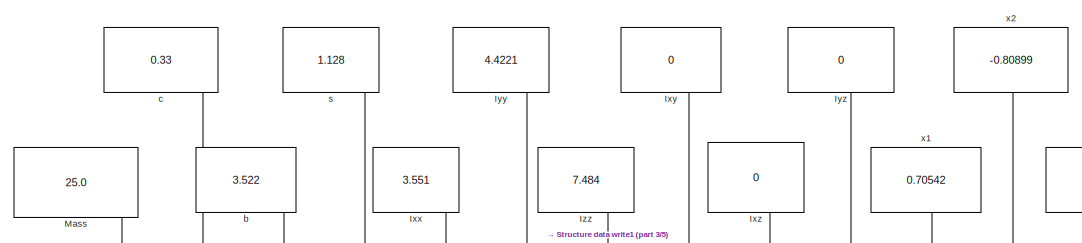
[diagram: Subsystem/If Action Subsystem - part 1/5, top left region]
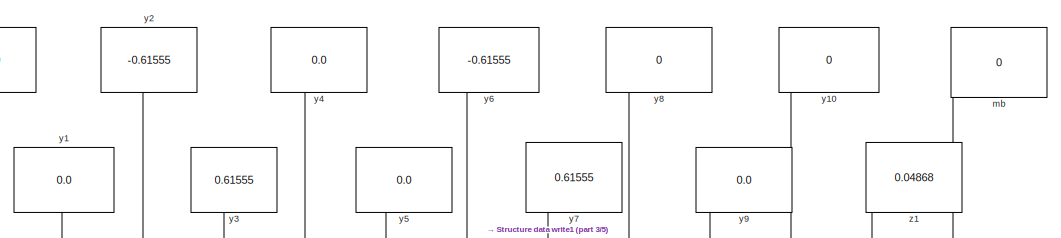
[diagram: Subsystem/If Action Subsystem - part 2/5, top right region]
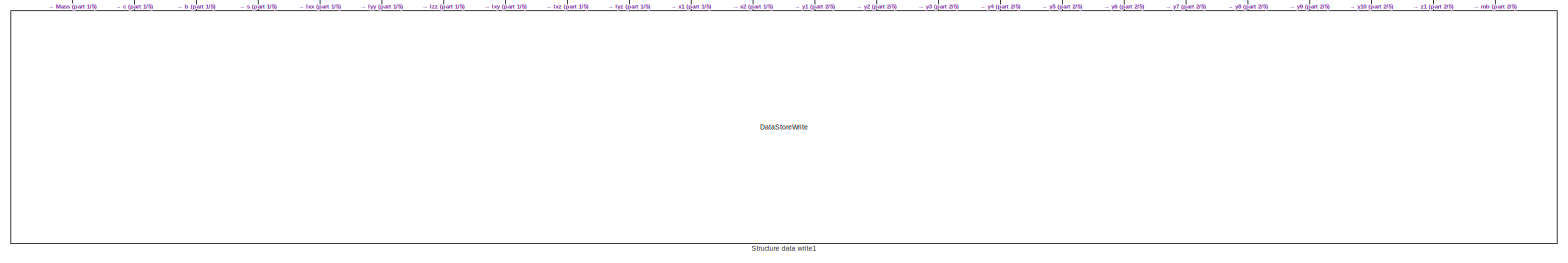
[diagram: Subsystem/If Action Subsystem - part 3/5, full width, top band]
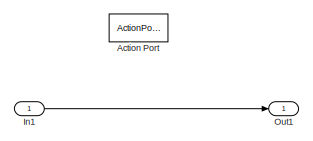
[diagram: Subsystem/If Action Subsystem - part 4/5, central region]
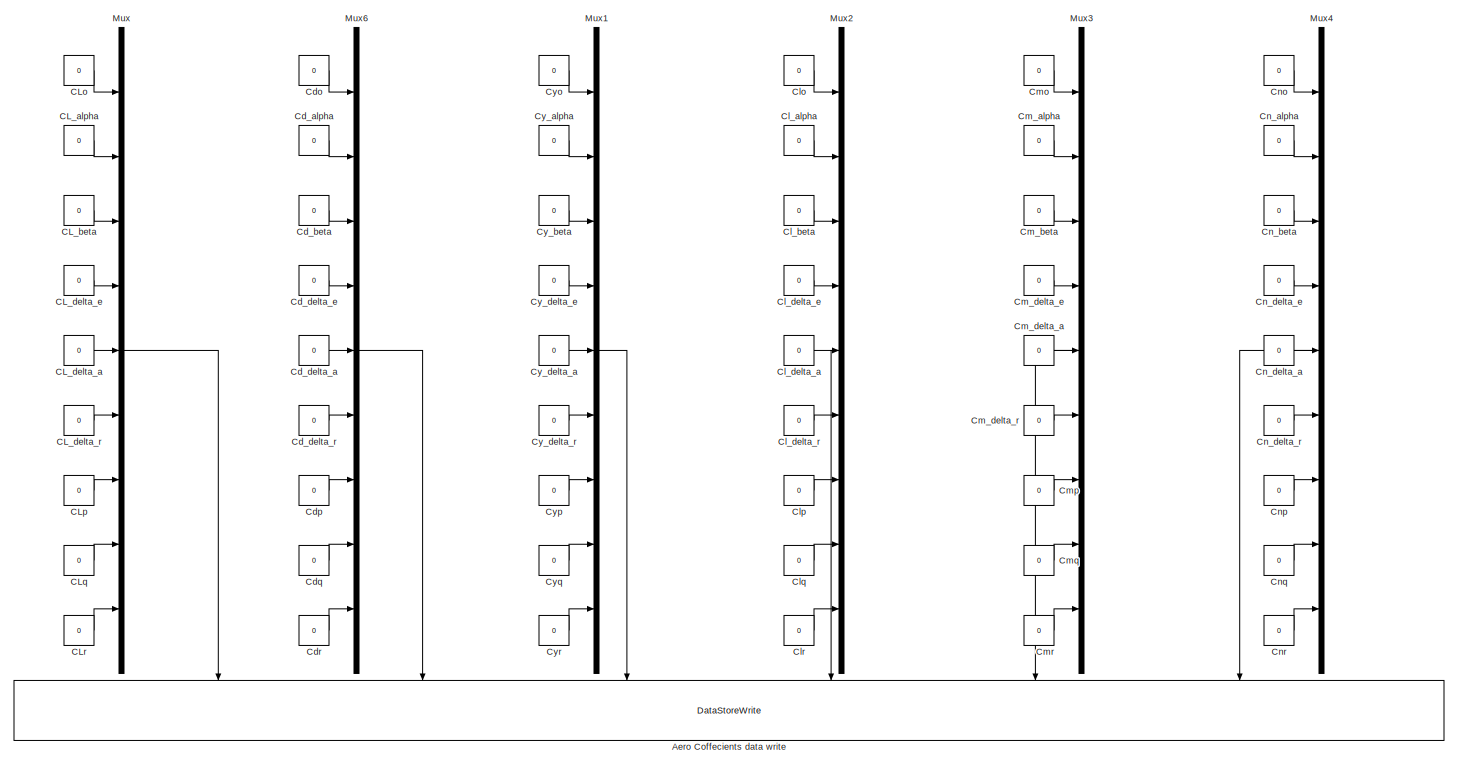
[diagram: Subsystem/If Action Subsystem - part 5/5, bottom center region]
BLOCK [SubSystem] Subsystem/If Action Subsystem
  Ports = [1, 1, 0, 0, 0, 0, 0, 1]
  RequestExecContextInheritance = off
  TreatAsAtomicUnit = on
BLOCK [ActionPort] Subsystem/If Action Subsystem/Action Port
  ActionPortLabel = if((u1) <= 0.001)
BLOCK [DataStoreWrite] Subsystem/If Action Subsystem/Aero Coffecients data write
  DataStoreElements = Aero_cofficients(1,:)#Aero_cofficients(2,:)#Aero_cofficients(3,:)#Aero_cofficients(4,:)#Aero_cofficients(5,:)#Aero_cofficients(6,:)
  DataStoreName = Aero_cofficients
  IndexOptions = Index vector (dialog)
  Indices = 1
  NameLocation = left
  OutputSizes = 1
  Ports = [6]
BLOCK [Constant] Subsystem/If Action Subsystem/CL_alpha
  Value = 0
BLOCK [Constant] Subsystem/If Action Subsystem/CL_beta
  Value = 0
BLOCK [Constant] Subsystem/If Action Subsystem/CL_delta_a
  Value = 0
BLOCK [Constant] Subsystem/If Action Subsystem/CL_delta_e
  Value = 0
BLOCK [Constant] Subsystem/If Action Subsystem/CL_delta_r
  Value = 0
BLOCK [Constant] Subsystem/If Action Subsystem/CLo
  Value = 0
BLOCK [Constant] Subsystem/If Action Subsystem/CLp
  Value = 0
BLOCK [Constant] Subsystem/If Action Subsystem/CLq
  Value = 0
BLOCK [Constant] Subsystem/If Action Subsystem/CLr
  Value = 0
BLOCK [Constant] Subsystem/If Action Subsystem/Cd_alpha
  Value = 0
BLOCK [Constant] Subsystem/If Action Subsystem/Cd_beta
  Value = 0
BLOCK [Constant] Subsystem/If Action Subsystem/Cd_delta_a
  Value = 0
BLOCK [Constant] Subsystem/If Action Subsystem/Cd_delta_e
  Value = 0
BLOCK [Constant] Subsystem/If Action Subsystem/Cd_delta_r
  Value = 0
BLOCK [Constant] Subsystem/If Action Subsystem/Cdo
  Value = 0
BLOCK [Constant] Subsystem/If Action Subsystem/Cdp
  Value = 0
BLOCK [Constant] Subsystem/If Action Subsystem/Cdq
  Value = 0
BLOCK [Constant] Subsystem/If Action Subsystem/Cdr
  Value = 0
BLOCK [Constant] Subsystem/If Action Subsystem/Cl_alpha
  Value = 0
BLOCK [Constant] Subsystem/If Action Subsystem/Cl_beta
  Value = 0
BLOCK [Constant] Subsystem/If Action Subsystem/Cl_delta_a
  Value = 0
BLOCK [Constant] Subsystem/If Action Subsystem/Cl_delta_e
  Value = 0
BLOCK [Constant] Subsystem/If Action Subsystem/Cl_delta_r
  Value = 0
BLOCK [Constant] Subsystem/If Action Subsystem/Clo
  Value = 0
BLOCK [Constant] Subsystem/If Action Subsystem/Clp
  Value = 0
BLOCK [Constant] Subsystem/If Action Subsystem/Clq
  Value = 0
BLOCK [Constant] Subsystem/If Action Subsystem/Clr
  Value = 0
BLOCK [Constant] Subsystem/If Action Subsystem/Cm_alpha
  Value = 0
BLOCK [Constant] Subsystem/If Action Subsystem/Cm_beta
  Value = 0
BLOCK [Constant] Subsystem/If Action Subsystem/Cm_delta_a
  Value = 0
BLOCK [Constant] Subsystem/If Action Subsystem/Cm_delta_e
  Value = 0
BLOCK [Constant] Subsystem/If Action Subsystem/Cm_delta_r
  Value = 0
BLOCK [Constant] Subsystem/If Action Subsystem/Cmo
  Value = 0
BLOCK [Constant] Subsystem/If Action Subsystem/Cmp
  Value = 0
BLOCK [Constant] Subsystem/If Action Subsystem/Cmq
  Value = 0
BLOCK [Constant] Subsystem/If Action Subsystem/Cmr
  Value = 0
BLOCK [Constant] Subsystem/If Action Subsystem/Cn_alpha
  Value = 0
BLOCK [Constant] Subsystem/If Action Subsystem/Cn_beta
  Value = 0
BLOCK [Constant] Subsystem/If Action Subsystem/Cn_delta_a
  Value = 0
BLOCK [Constant] Subsystem/If Action Subsystem/Cn_delta_e
  Value = 0
BLOCK [Constant] Subsystem/If Action Subsystem/Cn_delta_r
  Value = 0
BLOCK [Constant] Subsystem/If Action Subsystem/Cno
  Value = 0
BLOCK [Constant] Subsystem/If Action Subsystem/Cnp
  Value = 0
BLOCK [Constant] Subsystem/If Action Subsystem/Cnq
  Value = 0
BLOCK [Constant] Subsystem/If Action Subsystem/Cnr
  Value = 0
BLOCK [Constant] Subsystem/If Action Subsystem/Cy_alpha
  Value = 0
BLOCK [Constant] Subsystem/If Action Subsystem/Cy_beta
  Value = 0
BLOCK [Constant] Subsystem/If Action Subsystem/Cy_delta_a
  Value = 0
BLOCK [Constant] Subsystem/If Action Subsystem/Cy_delta_e
  Value = 0
BLOCK [Constant] Subsystem/If Action Subsystem/Cy_delta_r
  Value = 0
BLOCK [Constant] Subsystem/If Action Subsystem/Cyo
  Value = 0
BLOCK [Constant] Subsystem/If Action Subsystem/Cyp
  Value = 0
BLOCK [Constant] Subsystem/If Action Subsystem/Cyq
  Value = 0
BLOCK [Constant] Subsystem/If Action Subsystem/Cyr
  Value = 0
BLOCK [Inport] Subsystem/If Action Subsystem/In1
BLOCK [Constant] Subsystem/If Action Subsystem/Ixx
  NameLocation = left
  Value = 3.551
BLOCK [Constant] Subsystem/If Action Subsystem/Ixy
  NameLocation = left
  Value = 0
BLOCK [Constant] Subsystem/If Action Subsystem/Ixz
  NameLocation = left
  Value = 0
BLOCK [Constant] Subsystem/If Action Subsystem/Iyy
  NameLocation = left
  Value = 4.4221
BLOCK [Constant] Subsystem/If Action Subsystem/Iyz
  NameLocation = left
  Value = 0
BLOCK [Constant] Subsystem/If Action Subsystem/Izz
  NameLocation = left
  Value = 7.484
BLOCK [Constant] Subsystem/If Action Subsystem/Mass
  NameLocation = left
  Value = 25.0
BLOCK [Mux] Subsystem/If Action Subsystem/Mux
  DisplayOption = bar
  Inputs = 9
  Ports = [9, 1]
BLOCK [Mux] Subsystem/If Action Subsystem/Mux1
  DisplayOption = bar
  Inputs = 9
  Ports = [9, 1]
BLOCK [Mux] Subsystem/If Action Subsystem/Mux2
  DisplayOption = bar
  Inputs = 9
  Ports = [9, 1]
BLOCK [Mux] Subsystem/If Action Subsystem/Mux3
  DisplayOption = bar
  Inputs = 9
  Ports = [9, 1]
BLOCK [Mux] Subsystem/If Action Subsystem/Mux4
  DisplayOption = bar
  Inputs = 9
  Ports = [9, 1]
BLOCK [Mux] Subsystem/If Action Subsystem/Mux6
  DisplayOption = bar
  Inputs = 9
  Ports = [9, 1]
BLOCK [Outport] Subsystem/If Action Subsystem/Out1
  VectorParamsAs1DForOutWhenUnconnected = off
BLOCK [DataStoreWrite] Subsystem/If Action Subsystem/Structure data write1
  DataStoreName = Structural_data
  IndexOptions = Index vector (dialog)
  Indices = 1
  NameLocation = left
  OutputSizes = 1
  Ports = [24]
BLOCK [Constant] Subsystem/If Action Subsystem/b
  NameLocation = left
  Value = 3.522
BLOCK [Constant] Subsystem/If Action Subsystem/c
  NameLocation = left
  Value = 0.33
BLOCK [Constant] Subsystem/If Action Subsystem/mb
  NameLocation = left
  Value = 0
BLOCK [Constant] Subsystem/If Action Subsystem/s
  NameLocation = left
  Value = 1.128
BLOCK [Constant] Subsystem/If Action Subsystem/x1
  NameLocation = left
  Value = 0.70542
BLOCK [Constant] Subsystem/If Action Subsystem/x2
  NameLocation = left
  Value = -0.80899
BLOCK [Constant] Subsystem/If Action Subsystem/y1
  NameLocation = left
  Value = 0.0
BLOCK [Constant] Subsystem/If Action Subsystem/y10
  NameLocation = left
  Value = 0
BLOCK [Constant] Subsystem/If Action Subsystem/y2
  NameLocation = left
  Value = -0.61555
BLOCK [Constant] Subsystem/If Action Subsystem/y3
  NameLocation = left
  Value = 0.61555
BLOCK [Constant] Subsystem/If Action Subsystem/y4
  NameLocation = left
  Value = 0.0
BLOCK [Constant] Subsystem/If Action Subsystem/y5
  NameLocation = left
  Value = 0.0
BLOCK [Constant] Subsystem/If Action Subsystem/y6
  NameLocation = left
  Value = -0.61555
BLOCK [Constant] Subsystem/If Action Subsystem/y7
  NameLocation = left
  Value = 0.61555
BLOCK [Constant] Subsystem/If Action Subsystem/y8
  NameLocation = left
  Value = 0
BLOCK [Constant] Subsystem/If Action Subsystem/y9
  NameLocation = left
  Value = 0.0
BLOCK [Constant] Subsystem/If Action Subsystem/z1
  NameLocation = left
  Value = 0.04868
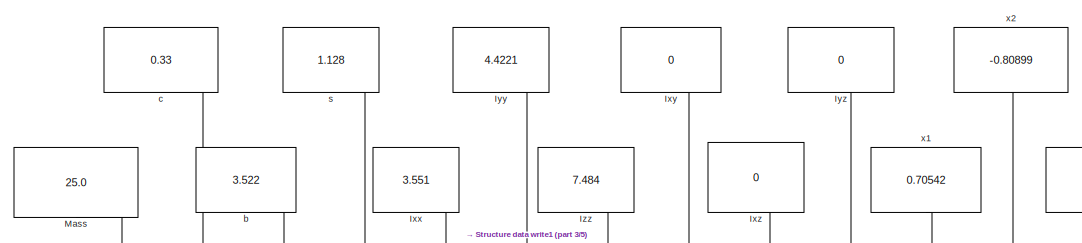
[diagram: Subsystem/If Action Subsystem1 - part 1/5, top left region]
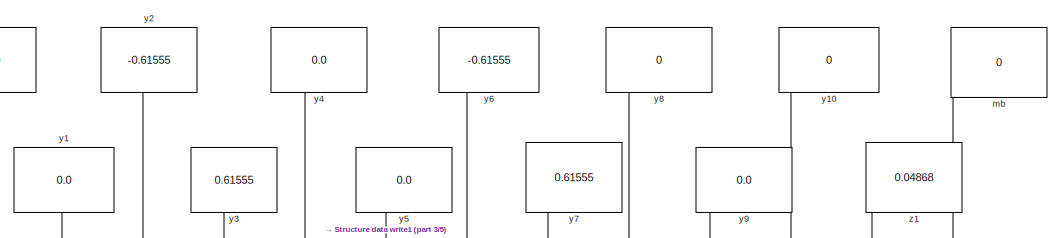
[diagram: Subsystem/If Action Subsystem1 - part 2/5, top right region]
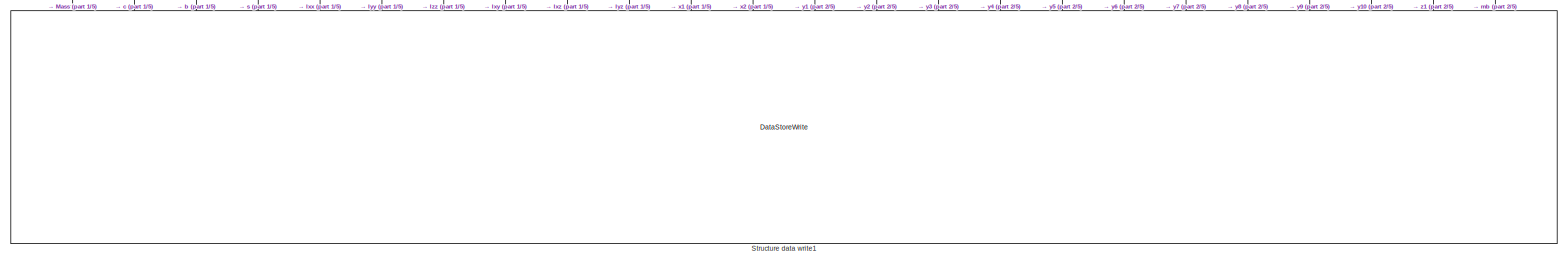
[diagram: Subsystem/If Action Subsystem1 - part 3/5, full width, top band]
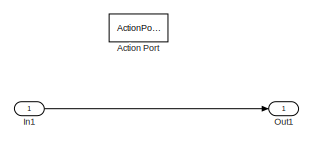
[diagram: Subsystem/If Action Subsystem1 - part 4/5, central region]
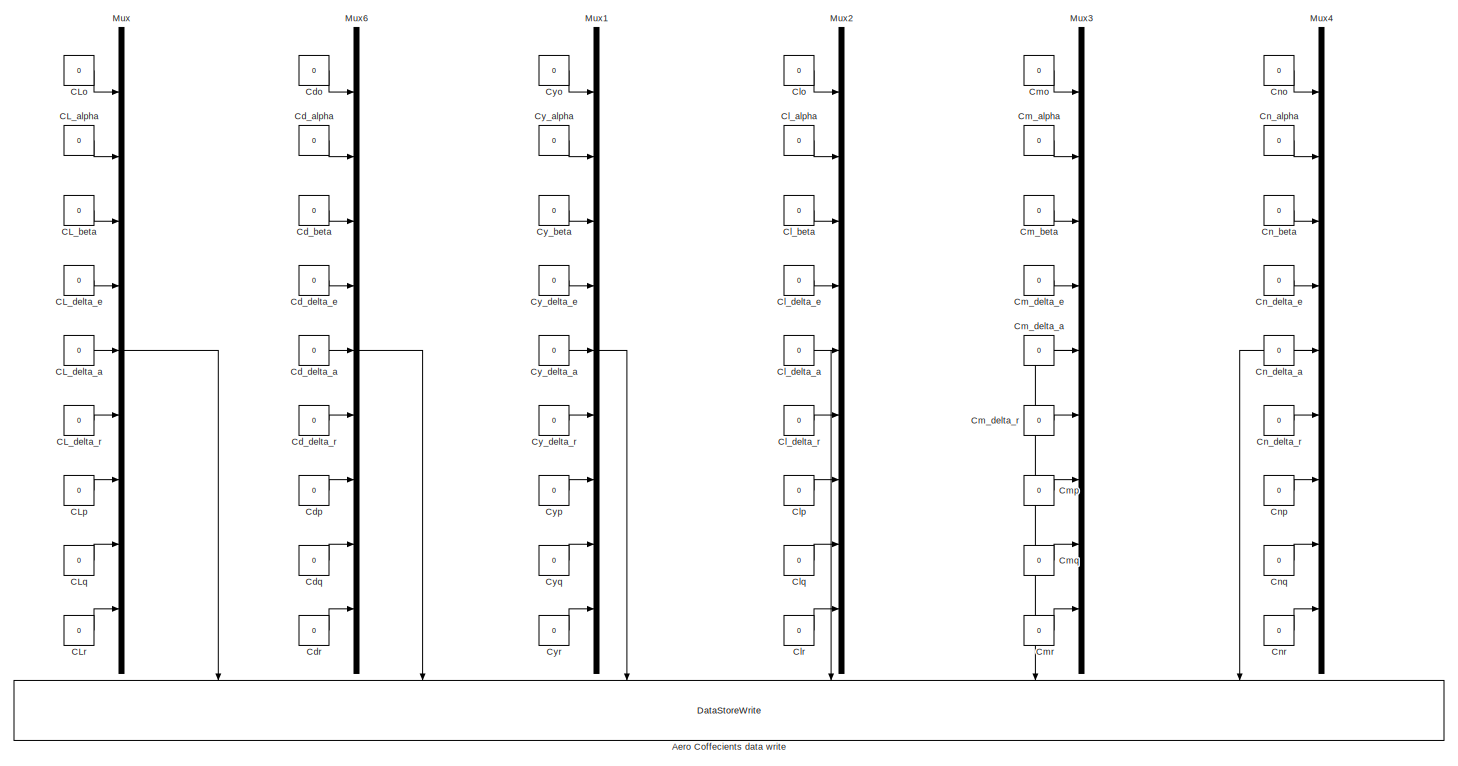
[diagram: Subsystem/If Action Subsystem1 - part 5/5, bottom center region]
BLOCK [SubSystem] Subsystem/If Action Subsystem1
  Ports = [1, 1, 0, 0, 0, 0, 0, 1]
  RequestExecContextInheritance = off
  TreatAsAtomicUnit = on
BLOCK [ActionPort] Subsystem/If Action Subsystem1/Action Port
  ActionPortLabel = else
BLOCK [DataStoreWrite] Subsystem/If Action Subsystem1/Aero Coffecients data write
  DataStoreElements = Aero_cofficients(1,:)#Aero_cofficients(2,:)#Aero_cofficients(3,:)#Aero_cofficients(4,:)#Aero_cofficients(5,:)#Aero_cofficients(6,:)
  DataStoreName = Aero_cofficients
  IndexOptions = Index vector (dialog)
  Indices = 1
  NameLocation = left
  OutputSizes = 1
  Ports = [6]
BLOCK [Constant] Subsystem/If Action Subsystem1/CL_alpha
  Value = 0
BLOCK [Constant] Subsystem/If Action Subsystem1/CL_beta
  Value = 0
BLOCK [Constant] Subsystem/If Action Subsystem1/CL_delta_a
  Value = 0
BLOCK [Constant] Subsystem/If Action Subsystem1/CL_delta_e
  Value = 0
BLOCK [Constant] Subsystem/If Action Subsystem1/CL_delta_r
  Value = 0
BLOCK [Constant] Subsystem/If Action Subsystem1/CLo
  Value = 0
BLOCK [Constant] Subsystem/If Action Subsystem1/CLp
  Value = 0
BLOCK [Constant] Subsystem/If Action Subsystem1/CLq
  Value = 0
BLOCK [Constant] Subsystem/If Action Subsystem1/CLr
  Value = 0
BLOCK [Constant] Subsystem/If Action Subsystem1/Cd_alpha
  Value = 0
BLOCK [Constant] Subsystem/If Action Subsystem1/Cd_beta
  Value = 0
BLOCK [Constant] Subsystem/If Action Subsystem1/Cd_delta_a
  Value = 0
BLOCK [Constant] Subsystem/If Action Subsystem1/Cd_delta_e
  Value = 0
BLOCK [Constant] Subsystem/If Action Subsystem1/Cd_delta_r
  Value = 0
BLOCK [Constant] Subsystem/If Action Subsystem1/Cdo
  Value = 0
BLOCK [Constant] Subsystem/If Action Subsystem1/Cdp
  Value = 0
BLOCK [Constant] Subsystem/If Action Subsystem1/Cdq
  Value = 0
BLOCK [Constant] Subsystem/If Action Subsystem1/Cdr
  Value = 0
BLOCK [Constant] Subsystem/If Action Subsystem1/Cl_alpha
  Value = 0
BLOCK [Constant] Subsystem/If Action Subsystem1/Cl_beta
  Value = 0
BLOCK [Constant] Subsystem/If Action Subsystem1/Cl_delta_a
  Value = 0
BLOCK [Constant] Subsystem/If Action Subsystem1/Cl_delta_e
  Value = 0
BLOCK [Constant] Subsystem/If Action Subsystem1/Cl_delta_r
  Value = 0
BLOCK [Constant] Subsystem/If Action Subsystem1/Clo
  Value = 0
BLOCK [Constant] Subsystem/If Action Subsystem1/Clp
  Value = 0
BLOCK [Constant] Subsystem/If Action Subsystem1/Clq
  Value = 0
BLOCK [Constant] Subsystem/If Action Subsystem1/Clr
  Value = 0
BLOCK [Constant] Subsystem/If Action Subsystem1/Cm_alpha
  Value = 0
BLOCK [Constant] Subsystem/If Action Subsystem1/Cm_beta
  Value = 0
BLOCK [Constant] Subsystem/If Action Subsystem1/Cm_delta_a
  Value = 0
BLOCK [Constant] Subsystem/If Action Subsystem1/Cm_delta_e
  Value = 0
BLOCK [Constant] Subsystem/If Action Subsystem1/Cm_delta_r
  Value = 0
BLOCK [Constant] Subsystem/If Action Subsystem1/Cmo
  Value = 0
BLOCK [Constant] Subsystem/If Action Subsystem1/Cmp
  Value = 0
BLOCK [Constant] Subsystem/If Action Subsystem1/Cmq
  Value = 0
BLOCK [Constant] Subsystem/If Action Subsystem1/Cmr
  Value = 0
BLOCK [Constant] Subsystem/If Action Subsystem1/Cn_alpha
  Value = 0
BLOCK [Constant] Subsystem/If Action Subsystem1/Cn_beta
  Value = 0
BLOCK [Constant] Subsystem/If Action Subsystem1/Cn_delta_a
  Value = 0
BLOCK [Constant] Subsystem/If Action Subsystem1/Cn_delta_e
  Value = 0
BLOCK [Constant] Subsystem/If Action Subsystem1/Cn_delta_r
  Value = 0
BLOCK [Constant] Subsystem/If Action Subsystem1/Cno
  Value = 0
BLOCK [Constant] Subsystem/If Action Subsystem1/Cnp
  Value = 0
BLOCK [Constant] Subsystem/If Action Subsystem1/Cnq
  Value = 0
BLOCK [Constant] Subsystem/If Action Subsystem1/Cnr
  Value = 0
BLOCK [Constant] Subsystem/If Action Subsystem1/Cy_alpha
  Value = 0
BLOCK [Constant] Subsystem/If Action Subsystem1/Cy_beta
  Value = 0
BLOCK [Constant] Subsystem/If Action Subsystem1/Cy_delta_a
  Value = 0
BLOCK [Constant] Subsystem/If Action Subsystem1/Cy_delta_e
  Value = 0
BLOCK [Constant] Subsystem/If Action Subsystem1/Cy_delta_r
  Value = 0
BLOCK [Constant] Subsystem/If Action Subsystem1/Cyo
  Value = 0
BLOCK [Constant] Subsystem/If Action Subsystem1/Cyp
  Value = 0
BLOCK [Constant] Subsystem/If Action Subsystem1/Cyq
  Value = 0
BLOCK [Constant] Subsystem/If Action Subsystem1/Cyr
  Value = 0
BLOCK [Inport] Subsystem/If Action Subsystem1/In1
BLOCK [Constant] Subsystem/If Action Subsystem1/Ixx
  NameLocation = left
  Value = 3.551
BLOCK [Constant] Subsystem/If Action Subsystem1/Ixy
  NameLocation = left
  Value = 0
BLOCK [Constant] Subsystem/If Action Subsystem1/Ixz
  NameLocation = left
  Value = 0
BLOCK [Constant] Subsystem/If Action Subsystem1/Iyy
  NameLocation = left
  Value = 4.4221
BLOCK [Constant] Subsystem/If Action Subsystem1/Iyz
  NameLocation = left
  Value = 0
BLOCK [Constant] Subsystem/If Action Subsystem1/Izz
  NameLocation = left
  Value = 7.484
BLOCK [Constant] Subsystem/If Action Subsystem1/Mass
  NameLocation = left
  Value = 25.0
BLOCK [Mux] Subsystem/If Action Subsystem1/Mux
  DisplayOption = bar
  Inputs = 9
  Ports = [9, 1]
BLOCK [Mux] Subsystem/If Action Subsystem1/Mux1
  DisplayOption = bar
  Inputs = 9
  Ports = [9, 1]
BLOCK [Mux] Subsystem/If Action Subsystem1/Mux2
  DisplayOption = bar
  Inputs = 9
  Ports = [9, 1]
BLOCK [Mux] Subsystem/If Action Subsystem1/Mux3
  DisplayOption = bar
  Inputs = 9
  Ports = [9, 1]
BLOCK [Mux] Subsystem/If Action Subsystem1/Mux4
  DisplayOption = bar
  Inputs = 9
  Ports = [9, 1]
BLOCK [Mux] Subsystem/If Action Subsystem1/Mux6
  DisplayOption = bar
  Inputs = 9
  Ports = [9, 1]
BLOCK [Outport] Subsystem/If Action Subsystem1/Out1
  VectorParamsAs1DForOutWhenUnconnected = off
BLOCK [DataStoreWrite] Subsystem/If Action Subsystem1/Structure data write1
  DataStoreName = Structural_data
  IndexOptions = Index vector (dialog)
  Indices = 1
  NameLocation = left
  OutputSizes = 1
  Ports = [24]
BLOCK [Constant] Subsystem/If Action Subsystem1/b
  NameLocation = left
  Value = 3.522
BLOCK [Constant] Subsystem/If Action Subsystem1/c
  NameLocation = left
  Value = 0.33
BLOCK [Constant] Subsystem/If Action Subsystem1/mb
  NameLocation = left
  Value = 0
BLOCK [Constant] Subsystem/If Action Subsystem1/s
  NameLocation = left
  Value = 1.128
BLOCK [Constant] Subsystem/If Action Subsystem1/x1
  NameLocation = left
  Value = 0.70542
BLOCK [Constant] Subsystem/If Action Subsystem1/x2
  NameLocation = left
  Value = -0.80899
BLOCK [Constant] Subsystem/If Action Subsystem1/y1
  NameLocation = left
  Value = 0.0
BLOCK [Constant] Subsystem/If Action Subsystem1/y10
  NameLocation = left
  Value = 0
BLOCK [Constant] Subsystem/If Action Subsystem1/y2
  NameLocation = left
  Value = -0.61555
BLOCK [Constant] Subsystem/If Action Subsystem1/y3
  NameLocation = left
  Value = 0.61555
BLOCK [Constant] Subsystem/If Action Subsystem1/y4
  NameLocation = left
  Value = 0.0
BLOCK [Constant] Subsystem/If Action Subsystem1/y5
  NameLocation = left
  Value = 0.0
BLOCK [Constant] Subsystem/If Action Subsystem1/y6
  NameLocation = left
  Value = -0.61555
BLOCK [Constant] Subsystem/If Action Subsystem1/y7
  NameLocation = left
  Value = 0.61555
BLOCK [Constant] Subsystem/If Action Subsystem1/y8
  NameLocation = left
  Value = 0
BLOCK [Constant] Subsystem/If Action Subsystem1/y9
  NameLocation = left
  Value = 0.0
BLOCK [Constant] Subsystem/If Action Subsystem1/z1
  NameLocation = left
  Value = 0.04868
BLOCK [Inport] Subsystem/Input
BLOCK [Mux] Subsystem/Mux
  DisplayOption = bar
  Inputs = 2
  Ports = [2, 1]
BLOCK [Outport] Subsystem/Output
  VectorParamsAs1DForOutWhenUnconnected = off
BLOCK [DataStoreRead] Subsystem/ww
  DataStoreElements = Plane_state_store(1,3)
  DataStoreName = Plane_state_store
  IndexOptions = Index vector (dialog)
  Indices = 1
  OutputSizes = 1
  Ports = [0, 1]
BLOCK [Sum] Sum
  Inputs = |++
  Ports = [2, 1]
BLOCK [Sum] Sum1
  Inputs = |++
  Ports = [2, 1]
BLOCK [Terminator] Terminator
BLOCK [Terminator] Terminator3
BLOCK [SubSystem] Thrust_delta_store
  NameLocation = left
  Ports = [1]
  RequestExecContextInheritance = off
BLOCK [Inport] Thrust_delta_store/Input
BLOCK [DataStoreWrite] Thrust_delta_store/Thrust_data_store
  DataStoreElements = Thrust_data_store(:,:)
  DataStoreName = Thrust_data_store
  IndexOptions = Index vector (dialog)
  Indices = 1
  OutputSizes = 1
  Ports = [1]
BLOCK [ToFile] To File
  Filename = save_101
  Ports = [1]
  SaveFormat = Timeseries
LINE Actuator_dynamics/Actutator dynamics:1 -> Actuator_dynamics/Out1:1
LINE Actuator_dynamics/In1:1 -> Actuator_dynamics/Actutator dynamics:1
LINE Actuator_dynamics:1 -> Demux2:1
LINE Add:1 -> MATLAB Function:1
LINE Aerodynamic_data_subsystem/CL_alpha:1 -> Aerodynamic_data_subsystem/Mux:2
LINE Aerodynamic_data_subsystem/CL_beta:1 -> Aerodynamic_data_subsystem/Mux:3
LINE Aerodynamic_data_subsystem/CL_delta_a:1 -> Aerodynamic_data_subsystem/Mux:5
LINE Aerodynamic_data_subsystem/CL_delta_e:1 -> Aerodynamic_data_subsystem/Mux:4
LINE Aerodynamic_data_subsystem/CL_delta_r:1 -> Aerodynamic_data_subsystem/Mux:6
LINE Aerodynamic_data_subsystem/CLo:1 -> Aerodynamic_data_subsystem/Mux:1
LINE Aerodynamic_data_subsystem/CLp:1 -> Aerodynamic_data_subsystem/Mux:7
LINE Aerodynamic_data_subsystem/CLq:1 -> Aerodynamic_data_subsystem/Mux:8
LINE Aerodynamic_data_subsystem/CLr:1 -> Aerodynamic_data_subsystem/Mux:9
LINE Aerodynamic_data_subsystem/Cd_alpha:1 -> Aerodynamic_data_subsystem/Mux6:2
LINE Aerodynamic_data_subsystem/Cd_beta:1 -> Aerodynamic_data_subsystem/Mux6:3
LINE Aerodynamic_data_subsystem/Cd_delta_a:1 -> Aerodynamic_data_subsystem/Mux6:5
LINE Aerodynamic_data_subsystem/Cd_delta_e:1 -> Aerodynamic_data_subsystem/Mux6:4
LINE Aerodynamic_data_subsystem/Cd_delta_r:1 -> Aerodynamic_data_subsystem/Mux6:6
LINE Aerodynamic_data_subsystem/Cdo:1 -> Aerodynamic_data_subsystem/Mux6:1
LINE Aerodynamic_data_subsystem/Cdp:1 -> Aerodynamic_data_subsystem/Mux6:7
LINE Aerodynamic_data_subsystem/Cdq:1 -> Aerodynamic_data_subsystem/Mux6:8
LINE Aerodynamic_data_subsystem/Cdr:1 -> Aerodynamic_data_subsystem/Mux6:9
LINE Aerodynamic_data_subsystem/Cl_alpha:1 -> Aerodynamic_data_subsystem/Mux2:2
LINE Aerodynamic_data_subsystem/Cl_beta:1 -> Aerodynamic_data_subsystem/Mux2:3
LINE Aerodynamic_data_subsystem/Cl_delta_a:1 -> Aerodynamic_data_subsystem/Mux2:5
LINE Aerodynamic_data_subsystem/Cl_delta_e:1 -> Aerodynamic_data_subsystem/Mux2:4
LINE Aerodynamic_data_subsystem/Cl_delta_r:1 -> Aerodynamic_data_subsystem/Mux2:6
LINE Aerodynamic_data_subsystem/Clo:1 -> Aerodynamic_data_subsystem/Mux2:1
LINE Aerodynamic_data_subsystem/Clp:1 -> Aerodynamic_data_subsystem/Mux2:7
LINE Aerodynamic_data_subsystem/Clq:1 -> Aerodynamic_data_subsystem/Mux2:8
LINE Aerodynamic_data_subsystem/Clr:1 -> Aerodynamic_data_subsystem/Mux2:9
LINE Aerodynamic_data_subsystem/Cm_alpha:1 -> Aerodynamic_data_subsystem/Mux3:2
LINE Aerodynamic_data_subsystem/Cm_beta:1 -> Aerodynamic_data_subsystem/Mux3:3
LINE Aerodynamic_data_subsystem/Cm_delta_a:1 -> Aerodynamic_data_subsystem/Mux3:5
LINE Aerodynamic_data_subsystem/Cm_delta_e:1 -> Aerodynamic_data_subsystem/Mux3:4
LINE Aerodynamic_data_subsystem/Cm_delta_r:1 -> Aerodynamic_data_subsystem/Mux3:6
LINE Aerodynamic_data_subsystem/Cmo:1 -> Aerodynamic_data_subsystem/Mux3:1
LINE Aerodynamic_data_subsystem/Cmp:1 -> Aerodynamic_data_subsystem/Mux3:7
LINE Aerodynamic_data_subsystem/Cmq:1 -> Aerodynamic_data_subsystem/Mux3:8
LINE Aerodynamic_data_subsystem/Cmr:1 -> Aerodynamic_data_subsystem/Mux3:9
LINE Aerodynamic_data_subsystem/Cn_alpha:1 -> Aerodynamic_data_subsystem/Mux4:2
LINE Aerodynamic_data_subsystem/Cn_beta:1 -> Aerodynamic_data_subsystem/Mux4:3
LINE Aerodynamic_data_subsystem/Cn_delta_a:1 -> Aerodynamic_data_subsystem/Mux4:5
LINE Aerodynamic_data_subsystem/Cn_delta_e:1 -> Aerodynamic_data_subsystem/Mux4:4
LINE Aerodynamic_data_subsystem/Cn_delta_r:1 -> Aerodynamic_data_subsystem/Mux4:6
LINE Aerodynamic_data_subsystem/Cno:1 -> Aerodynamic_data_subsystem/Mux4:1
LINE Aerodynamic_data_subsystem/Cnp:1 -> Aerodynamic_data_subsystem/Mux4:7
LINE Aerodynamic_data_subsystem/Cnq:1 -> Aerodynamic_data_subsystem/Mux4:8
LINE Aerodynamic_data_subsystem/Cnr:1 -> Aerodynamic_data_subsystem/Mux4:9
LINE Aerodynamic_data_subsystem/Cy_alpha:1 -> Aerodynamic_data_subsystem/Mux1:2
LINE Aerodynamic_data_subsystem/Cy_beta:1 -> Aerodynamic_data_subsystem/Mux1:3
LINE Aerodynamic_data_subsystem/Cy_delta_a:1 -> Aerodynamic_data_subsystem/Mux1:5
LINE Aerodynamic_data_subsystem/Cy_delta_e:1 -> Aerodynamic_data_subsystem/Mux1:4
LINE Aerodynamic_data_subsystem/Cy_delta_r:1 -> Aerodynamic_data_subsystem/Mux1:6
LINE Aerodynamic_data_subsystem/Cyo:1 -> Aerodynamic_data_subsystem/Mux1:1
LINE Aerodynamic_data_subsystem/Cyp:1 -> Aerodynamic_data_subsystem/Mux1:7
LINE Aerodynamic_data_subsystem/Cyq:1 -> Aerodynamic_data_subsystem/Mux1:8
LINE Aerodynamic_data_subsystem/Cyr:1 -> Aerodynamic_data_subsystem/Mux1:9
LINE Aerodynamic_data_subsystem/Mux1:1 -> Aerodynamic_data_subsystem/Aero Coffecients data write:3
LINE Aerodynamic_data_subsystem/Mux2:1 -> Aerodynamic_data_subsystem/Aero Coffecients data write:4
LINE Aerodynamic_data_subsystem/Mux3:1 -> Aerodynamic_data_subsystem/Aero Coffecients data write:5
LINE Aerodynamic_data_subsystem/Mux4:1 -> Aerodynamic_data_subsystem/Aero Coffecients data write:6
LINE Aerodynamic_data_subsystem/Mux6:1 -> Aerodynamic_data_subsystem/Aero Coffecients data write:2
LINE Aerodynamic_data_subsystem/Mux:1 -> Aerodynamic_data_subsystem/Aero Coffecients data write:1
LINE Autopilot Quad mode/Aero_coffecients read1:1 -> Autopilot Quad mode/Autopilot:6
LINE Autopilot Quad mode/Autopilot:1 -> Autopilot Quad mode/Tzf1:1
LINE Autopilot Quad mode/Autopilot:10 -> Autopilot Quad mode/Tx10:1
LINE Autopilot Quad mode/Autopilot:11 -> Autopilot Quad mode/delta_e:1
LINE Autopilot Quad mode/Autopilot:12 -> Autopilot Quad mode/delta_a:1
LINE Autopilot Quad mode/Autopilot:13 -> Autopilot Quad mode/delta_r:1
LINE Autopilot Quad mode/Autopilot:2 -> Autopilot Quad mode/Tzf2:1
LINE Autopilot Quad mode/Autopilot:3 -> Autopilot Quad mode/Tzf3:1
LINE Autopilot Quad mode/Autopilot:4 -> Autopilot Quad mode/Tzf4:1
LINE Autopilot Quad mode/Autopilot:5 -> Autopilot Quad mode/Tzb5:1
LINE Autopilot Quad mode/Autopilot:6 -> Autopilot Quad mode/Tzb6:1
LINE Autopilot Quad mode/Autopilot:7 -> Autopilot Quad mode/Tzb7:1
LINE Autopilot Quad mode/Autopilot:8 -> Autopilot Quad mode/Tzb8:1
LINE Autopilot Quad mode/Autopilot:9 -> Autopilot Quad mode/Tx9:1
LINE Autopilot Quad mode/Clock1:1 -> Autopilot Quad mode/MATLAB Function3:1
LINE Autopilot Quad mode/Clock2:1 -> Autopilot Quad mode/MATLAB Function5:1
LINE Autopilot Quad mode/Clock:1 -> Autopilot Quad mode/MATLAB Function1:1
LINE Autopilot Quad mode/Data Store Read1:1 -> Autopilot Quad mode/MATLAB Function3:2
LINE Autopilot Quad mode/Data Store Read2:1 -> Autopilot Quad mode/Autopilot:8
LINE Autopilot Quad mode/Data Store Read:1 -> Autopilot Quad mode/MATLAB Function1:2
LINE Autopilot Quad mode/Demux1:1 -> Autopilot Quad mode/MATLAB Function5:2
LINE Autopilot Quad mode/Demux1:2 -> Autopilot Quad mode/MATLAB Function5:3
LINE Autopilot Quad mode/MATLAB Function1:1 -> Autopilot Quad mode/PID Controller (2DOF):1
LINE Autopilot Quad mode/MATLAB Function2:1 -> Autopilot Quad mode/PID Controller (2DOF)1:1
LINE Autopilot Quad mode/MATLAB Function3:1 -> Autopilot Quad mode/PID Controller (2DOF)2:1
LINE Autopilot Quad mode/MATLAB Function4:1 -> Autopilot Quad mode/PID Controller (2DOF)3:1
LINE Autopilot Quad mode/MATLAB Function5:1 -> Autopilot Quad mode/MATLAB Function:1
LINE Autopilot Quad mode/MATLAB Function6:1 -> Autopilot Quad mode/PID Controller (2DOF)5:1
LINE Autopilot Quad mode/MATLAB Function7:1 -> Autopilot Quad mode/MATLAB Function3:4
LINE Autopilot Quad mode/MATLAB Function7:2 -> Autopilot Quad mode/MATLAB Function1:4
LINE Autopilot Quad mode/MATLAB Function7:3 -> Autopilot Quad mode/Terminator:1
LINE Autopilot Quad mode/MATLAB Function:1 -> Autopilot Quad mode/PID Controller:1
LINE Autopilot Quad mode/PID Controller (2DOF)1:1 -> Autopilot Quad mode/Autopilot:1
LINE Autopilot Quad mode/PID Controller (2DOF)2:1 -> Autopilot Quad mode/MATLAB Function4:2
LINE Autopilot Quad mode/PID Controller (2DOF)3:1 -> Autopilot Quad mode/Autopilot:2
LINE Autopilot Quad mode/PID Controller (2DOF)5:1 -> Autopilot Quad mode/Autopilot:3
LINE Autopilot Quad mode/PID Controller (2DOF):1 -> Autopilot Quad mode/MATLAB Function2:2
LINE Autopilot Quad mode/PID Controller:1 -> Autopilot Quad mode/MATLAB Function6:2
NET Autopilot Quad mode/Plane_states:1 -> Autopilot Quad mode/Autopilot:5, Autopilot Quad mode/MATLAB Function7:1
LINE Autopilot Quad mode/Structure_data_read:1 -> Autopilot Quad mode/Autopilot:7
LINE Autopilot Quad mode/ang_st1:1 -> Autopilot Quad mode/MATLAB Function4:1
LINE Autopilot Quad mode/ang_st2:1 -> Autopilot Quad mode/MATLAB Function6:1
LINE Autopilot Quad mode/ang_st:1 -> Autopilot Quad mode/MATLAB Function2:1
NET Autopilot Quad mode/ax_d,ay_d,az_d:1 -> Autopilot Quad mode/Autopilot:4, Autopilot Quad mode/MATLAB Function7:2
LINE Autopilot Quad mode/mass1:1 -> Autopilot Quad mode/MATLAB Function3:3
LINE Autopilot Quad mode/mass:1 -> Autopilot Quad mode/MATLAB Function1:3
LINE Autopilot Quad mode/p:1 -> Autopilot Quad mode/PID Controller (2DOF)1:2
LINE Autopilot Quad mode/phi:1 -> Autopilot Quad mode/PID Controller (2DOF):2
LINE Autopilot Quad mode/psi:1 -> Autopilot Quad mode/MATLAB Function:2
LINE Autopilot Quad mode/q :1 -> Autopilot Quad mode/PID Controller (2DOF)3:2
LINE Autopilot Quad mode/r:1 -> Autopilot Quad mode/PID Controller (2DOF)5:2
LINE Autopilot Quad mode/theta:1 -> Autopilot Quad mode/PID Controller (2DOF)2:2
LINE Autopilot Quad mode/u,v:1 -> Autopilot Quad mode/Demux1:1
LINE Autopilot Quad mode:1 -> Mux:1
LINE Autopilot Quad mode:10 -> Mux1:2
LINE Autopilot Quad mode:11 -> Mux5:1
LINE Autopilot Quad mode:12 -> Mux5:2
LINE Autopilot Quad mode:13 -> Mux5:3
LINE Autopilot Quad mode:2 -> Mux:2
LINE Autopilot Quad mode:3 -> Mux:3
LINE Autopilot Quad mode:4 -> Mux:4
LINE Autopilot Quad mode:5 -> Mux:5
LINE Autopilot Quad mode:6 -> Mux:6
LINE Autopilot Quad mode:7 -> Mux:7
LINE Autopilot Quad mode:8 -> Mux:8
LINE Autopilot Quad mode:9 -> Mux1:1
LINE Band-Limited White Noise:1 -> Add:2
LINE Constant1:1 -> Multiply3:2
LINE Constant2:1 -> Flat Earth to LLA:2
LINE Constant3:1 -> Sum:1
LINE Constant4:1 -> Sum1:1
LINE Constant:1 -> Multiply2:2
NET Delay:1 -> Autopilot Quad mode:2, Forces and moments:14, Subsystem:1
LINE Demux1:1 -> Forces and moments:9
LINE Demux1:2 -> Forces and moments:10
LINE Demux2:1 -> Forces and moments:11
LINE Demux2:2 -> Forces and moments:12
LINE Demux2:3 -> Forces and moments:13
LINE Demux3:1 -> Mux8:2
LINE Demux3:2 -> Mux8:1
LINE Demux:1 -> Forces and moments:1
LINE Demux:2 -> Forces and moments:2
LINE Demux:3 -> Forces and moments:3
LINE Demux:4 -> Forces and moments:4
LINE Demux:5 -> Forces and moments:5
LINE Demux:6 -> Forces and moments:6
LINE Demux:7 -> Forces and moments:7
LINE Demux:8 -> Forces and moments:8
NET Flat Earth to LLA:1 -> Demux3:1, Mux3:5, Scope2:1
NET Flat Earth to LLA:2 -> Mux3:6, Mux8:3, Scope1:1
LINE Forces and moments/Aero_coffecients read1:1 -> Forces and moments/Forces and moments:14
LINE Forces and moments/Forces and moments:1 -> Forces and moments/Mux:1
LINE Forces and moments/Forces and moments:2 -> Forces and moments/Mux:2
LINE Forces and moments/Forces and moments:3 -> Forces and moments/Mux:3
LINE Forces and moments/Forces and moments:4 -> Forces and moments/Mux1:1
LINE Forces and moments/Forces and moments:5 -> Forces and moments/Mux1:2
LINE Forces and moments/Forces and moments:6 -> Forces and moments/Mux1:3
LINE Forces and moments/Mux1:1 -> Forces and moments/Mxyz:1
LINE Forces and moments/Mux:1 -> Forces and moments/Fxyz:1
LINE Forces and moments/Plane_states:1 -> Forces and moments/Forces and moments:16
LINE Forces and moments/Structure_data_read:1 -> Forces and moments/Forces and moments:15
LINE Forces and moments/Tx10:1 -> Forces and moments/Forces and moments:10
LINE Forces and moments/Tx9:1 -> Forces and moments/Forces and moments:9
LINE Forces and moments/Tzb5:1 -> Forces and moments/Forces and moments:5
LINE Forces and moments/Tzb6:1 -> Forces and moments/Forces and moments:6
LINE Forces and moments/Tzb7:1 -> Forces and moments/Forces and moments:7
LINE Forces and moments/Tzb8:1 -> Forces and moments/Forces and moments:8
LINE Forces and moments/Tzf1:1 -> Forces and moments/Forces and moments:1
LINE Forces and moments/Tzf2:1 -> Forces and moments/Forces and moments:2
LINE Forces and moments/Tzf3 :1 -> Forces and moments/Forces and moments:3
LINE Forces and moments/Tzf4:1 -> Forces and moments/Forces and moments:4
LINE Forces and moments/delta_a:1 -> Forces and moments/Forces and moments:12
LINE Forces and moments/delta_e:1 -> Forces and moments/Forces and moments:11
LINE Forces and moments/delta_r:1 -> Forces and moments/Forces and moments:13
LINE Forces and moments:1 -> Plant:1
LINE Forces and moments:2 -> Plant:2
LINE Guidance/Clock:1 -> Guidance/MATLAB Function1:1
LINE Guidance/MATLAB Function1:1 -> Guidance/PID Controller (2DOF):1
LINE Guidance/MATLAB Function1:2 -> Guidance/PID Controller (2DOF)1:1
LINE Guidance/MATLAB Function1:3 -> Guidance/PID Controller (2DOF)6:1
LINE Guidance/MATLAB Function:1 -> Guidance/PID Controller (2DOF):2
LINE Guidance/MATLAB Function:2 -> Guidance/PID Controller (2DOF)1:2
LINE Guidance/MATLAB Function:3 -> Guidance/PID Controller (2DOF)6:2
LINE Guidance/MATLAB Function:4 -> Guidance/PID Controller (2DOF)3:2
LINE Guidance/MATLAB Function:5 -> Guidance/PID Controller (2DOF)4:2
LINE Guidance/MATLAB Function:6 -> Guidance/PID Controller (2DOF)2:2
LINE Guidance/Mux:1 -> Guidance/MATLAB Function:1
LINE Guidance/PID Controller (2DOF)1:1 -> Guidance/PID Controller (2DOF)4:1
LINE Guidance/PID Controller (2DOF)2:1 -> Guidance/aZ_d:1
LINE Guidance/PID Controller (2DOF)3:1 -> Guidance/aX_d:1
LINE Guidance/PID Controller (2DOF)4:1 -> Guidance/aY_d:1
LINE Guidance/PID Controller (2DOF)6:1 -> Guidance/PID Controller (2DOF)2:1
LINE Guidance/PID Controller (2DOF):1 -> Guidance/PID Controller (2DOF)3:1
LINE Guidance/Plane_states:1 -> Guidance/Mux:2
LINE Guidance/plane_state:1 -> Guidance/Mux:1
LINE Guidance:1 -> Mux6:1
LINE Guidance:2 -> Mux6:2
LINE Guidance:3 -> Mux6:3
LINE MATLAB Function:1 -> Scope6:1
LINE MATLAB Function:2 -> Scope7:1
LINE Multiply2:1 -> Scope3:1
LINE Multiply3:1 -> Scope4:1
NET Mux1:1 -> Mux7:2, Rotor_dynamics_pusher:1
LINE Mux2:1 -> Sum:2
LINE Mux3:1 -> Sum1:2
NET Mux4:1 -> Delay:1, Plane_state_store:1, To File:1
NET Mux5:1 -> Actuator_dynamics:1, Mux7:3
LINE Mux6:1 -> Autopilot Quad mode:1
LINE Mux7:1 -> Thrust_delta_store:1
LINE Mux8:1 -> FlightGear Preconfigured 6DoF Animation:1
LINE Mux9:1 -> Add:1
NET Mux:1 -> Mux7:1, Rotor_dynamics_vtol_motors:1
LINE Nonlinear Second-Order Actuator1:1 -> Mux4:2
LINE Nonlinear Second-Order Actuator:1 -> Mux4:1
LINE Plane_state_store/Input:1 -> Plane_state_store/Plane_state_data_write:1
LINE Plant/6DOF (Euler Angles):1 -> Plant/VX,VY,VZ:1
LINE Plant/6DOF (Euler Angles):2 -> Plant/X,Y,Z:1
LINE Plant/6DOF (Euler Angles):3 -> Plant/phi,theta,psi:1
LINE Plant/6DOF (Euler Angles):4 -> Plant/Dcm_be:1
LINE Plant/6DOF (Euler Angles):5 -> Plant/u,v,w:1
LINE Plant/6DOF (Euler Angles):6 -> Plant/p,q,r:1
LINE Plant/6DOF (Euler Angles):7 -> Plant/p_dot,q_dot,r_dot:1
LINE Plant/6DOF (Euler Angles):8 -> Plant/ax,ay,az:1
LINE Plant/6DOF (Euler Angles):9 -> Plant/acc_bi:1
LINE Plant/Fxyz:1 -> Plant/6DOF (Euler Angles):1
LINE Plant/Mxyz:1 -> Plant/6DOF (Euler Angles):2
LINE Plant:1 -> Mux2:1
NET Plant:2 -> Multiply3:1, Mux2:2, Mux9:1
NET Plant:3 -> MATLAB Function:2, Multiply2:1, Mux2:3, Mux8:4, Simulation 3D UAV Vehicle:2
NET Plant:4 -> Flat Earth to LLA:1, Mux2:4, Scope5:1, Scope:1, Simulation 3D UAV Vehicle:1
LINE Plant:5 -> Terminator:1
LINE Plant:6 -> Mux3:1
LINE Plant:7 -> Mux3:2
NET Plant:8 -> Mux3:3, Mux9:2
LINE Plant:9 -> Mux3:4
LINE Rotor_dynamics_pusher/In1:1 -> Rotor_dynamics_pusher/Rotor_dynamics_pusher:1
LINE Rotor_dynamics_pusher/Rotor_dynamics_pusher:1 -> Rotor_dynamics_pusher/Out1:1
LINE Rotor_dynamics_pusher:1 -> Demux1:1
LINE Rotor_dynamics_vtol_motors/In1:1 -> Rotor_dynamics_vtol_motors/Rotor_dynamics_vtol_motors:1
LINE Rotor_dynamics_vtol_motors/Rotor_dynamics_vtol_motors:1 -> Rotor_dynamics_vtol_motors/Out1:1
LINE Rotor_dynamics_vtol_motors:1 -> Demux:1
LINE Sine Wave1:1 -> Terminator3:1
LINE Structural_data_subsystem/Ixx:1 -> Structural_data_subsystem/Structure data write1:5
LINE Structural_data_subsystem/Ixy:1 -> Structural_data_subsystem/Structure data write1:8
LINE Structural_data_subsystem/Ixz:1 -> Structural_data_subsystem/Structure data write1:9
LINE Structural_data_subsystem/Iyy:1 -> Structural_data_subsystem/Structure data write1:6
LINE Structural_data_subsystem/Iyz:1 -> Structural_data_subsystem/Structure data write1:10
LINE Structural_data_subsystem/Izz:1 -> Structural_data_subsystem/Structure data write1:7
LINE Structural_data_subsystem/Mass:1 -> Structural_data_subsystem/Structure data write1:1
LINE Structural_data_subsystem/b:1 -> Structural_data_subsystem/Structure data write1:3
LINE Structural_data_subsystem/c:1 -> Structural_data_subsystem/Structure data write1:2
LINE Structural_data_subsystem/mb:1 -> Structural_data_subsystem/Structure data write1:24
LINE Structural_data_subsystem/s:1 -> Structural_data_subsystem/Structure data write1:4
LINE Structural_data_subsystem/x1:1 -> Structural_data_subsystem/Structure data write1:11
LINE Structural_data_subsystem/x2:1 -> Structural_data_subsystem/Structure data write1:12
LINE Structural_data_subsystem/y10:1 -> Structural_data_subsystem/Structure data write1:22
LINE Structural_data_subsystem/y1:1 -> Structural_data_subsystem/Structure data write1:13
LINE Structural_data_subsystem/y2:1 -> Structural_data_subsystem/Structure data write1:14
LINE Structural_data_subsystem/y3:1 -> Structural_data_subsystem/Structure data write1:15
LINE Structural_data_subsystem/y4:1 -> Structural_data_subsystem/Structure data write1:16
LINE Structural_data_subsystem/y5:1 -> Structural_data_subsystem/Structure data write1:17
LINE Structural_data_subsystem/y6:1 -> Structural_data_subsystem/Structure data write1:18
LINE Structural_data_subsystem/y7:1 -> Structural_data_subsystem/Structure data write1:19
LINE Structural_data_subsystem/y8:1 -> Structural_data_subsystem/Structure data write1:20
LINE Structural_data_subsystem/y9:1 -> Structural_data_subsystem/Structure data write1:21
LINE Structural_data_subsystem/z1:1 -> Structural_data_subsystem/Structure data write1:23
LINE Subsystem/If Action Subsystem/CL_alpha:1 -> Subsystem/If Action Subsystem/Mux:2
LINE Subsystem/If Action Subsystem/CL_beta:1 -> Subsystem/If Action Subsystem/Mux:3
LINE Subsystem/If Action Subsystem/CL_delta_a:1 -> Subsystem/If Action Subsystem/Mux:5
LINE Subsystem/If Action Subsystem/CL_delta_e:1 -> Subsystem/If Action Subsystem/Mux:4
LINE Subsystem/If Action Subsystem/CL_delta_r:1 -> Subsystem/If Action Subsystem/Mux:6
LINE Subsystem/If Action Subsystem/CLo:1 -> Subsystem/If Action Subsystem/Mux:1
LINE Subsystem/If Action Subsystem/CLp:1 -> Subsystem/If Action Subsystem/Mux:7
LINE Subsystem/If Action Subsystem/CLq:1 -> Subsystem/If Action Subsystem/Mux:8
LINE Subsystem/If Action Subsystem/CLr:1 -> Subsystem/If Action Subsystem/Mux:9
LINE Subsystem/If Action Subsystem/Cd_alpha:1 -> Subsystem/If Action Subsystem/Mux6:2
LINE Subsystem/If Action Subsystem/Cd_beta:1 -> Subsystem/If Action Subsystem/Mux6:3
LINE Subsystem/If Action Subsystem/Cd_delta_a:1 -> Subsystem/If Action Subsystem/Mux6:5
LINE Subsystem/If Action Subsystem/Cd_delta_e:1 -> Subsystem/If Action Subsystem/Mux6:4
LINE Subsystem/If Action Subsystem/Cd_delta_r:1 -> Subsystem/If Action Subsystem/Mux6:6
LINE Subsystem/If Action Subsystem/Cdo:1 -> Subsystem/If Action Subsystem/Mux6:1
LINE Subsystem/If Action Subsystem/Cdp:1 -> Subsystem/If Action Subsystem/Mux6:7
LINE Subsystem/If Action Subsystem/Cdq:1 -> Subsystem/If Action Subsystem/Mux6:8
LINE Subsystem/If Action Subsystem/Cdr:1 -> Subsystem/If Action Subsystem/Mux6:9
LINE Subsystem/If Action Subsystem/Cl_alpha:1 -> Subsystem/If Action Subsystem/Mux2:2
LINE Subsystem/If Action Subsystem/Cl_beta:1 -> Subsystem/If Action Subsystem/Mux2:3
LINE Subsystem/If Action Subsystem/Cl_delta_a:1 -> Subsystem/If Action Subsystem/Mux2:5
LINE Subsystem/If Action Subsystem/Cl_delta_e:1 -> Subsystem/If Action Subsystem/Mux2:4
LINE Subsystem/If Action Subsystem/Cl_delta_r:1 -> Subsystem/If Action Subsystem/Mux2:6
LINE Subsystem/If Action Subsystem/Clo:1 -> Subsystem/If Action Subsystem/Mux2:1
LINE Subsystem/If Action Subsystem/Clp:1 -> Subsystem/If Action Subsystem/Mux2:7
LINE Subsystem/If Action Subsystem/Clq:1 -> Subsystem/If Action Subsystem/Mux2:8
LINE Subsystem/If Action Subsystem/Clr:1 -> Subsystem/If Action Subsystem/Mux2:9
LINE Subsystem/If Action Subsystem/Cm_alpha:1 -> Subsystem/If Action Subsystem/Mux3:2
LINE Subsystem/If Action Subsystem/Cm_beta:1 -> Subsystem/If Action Subsystem/Mux3:3
LINE Subsystem/If Action Subsystem/Cm_delta_a:1 -> Subsystem/If Action Subsystem/Mux3:5
LINE Subsystem/If Action Subsystem/Cm_delta_e:1 -> Subsystem/If Action Subsystem/Mux3:4
LINE Subsystem/If Action Subsystem/Cm_delta_r:1 -> Subsystem/If Action Subsystem/Mux3:6
LINE Subsystem/If Action Subsystem/Cmo:1 -> Subsystem/If Action Subsystem/Mux3:1
LINE Subsystem/If Action Subsystem/Cmp:1 -> Subsystem/If Action Subsystem/Mux3:7
LINE Subsystem/If Action Subsystem/Cmq:1 -> Subsystem/If Action Subsystem/Mux3:8
LINE Subsystem/If Action Subsystem/Cmr:1 -> Subsystem/If Action Subsystem/Mux3:9
LINE Subsystem/If Action Subsystem/Cn_alpha:1 -> Subsystem/If Action Subsystem/Mux4:2
LINE Subsystem/If Action Subsystem/Cn_beta:1 -> Subsystem/If Action Subsystem/Mux4:3
LINE Subsystem/If Action Subsystem/Cn_delta_a:1 -> Subsystem/If Action Subsystem/Mux4:5
LINE Subsystem/If Action Subsystem/Cn_delta_e:1 -> Subsystem/If Action Subsystem/Mux4:4
LINE Subsystem/If Action Subsystem/Cn_delta_r:1 -> Subsystem/If Action Subsystem/Mux4:6
LINE Subsystem/If Action Subsystem/Cno:1 -> Subsystem/If Action Subsystem/Mux4:1
LINE Subsystem/If Action Subsystem/Cnp:1 -> Subsystem/If Action Subsystem/Mux4:7
LINE Subsystem/If Action Subsystem/Cnq:1 -> Subsystem/If Action Subsystem/Mux4:8
LINE Subsystem/If Action Subsystem/Cnr:1 -> Subsystem/If Action Subsystem/Mux4:9
LINE Subsystem/If Action Subsystem/Cy_alpha:1 -> Subsystem/If Action Subsystem/Mux1:2
LINE Subsystem/If Action Subsystem/Cy_beta:1 -> Subsystem/If Action Subsystem/Mux1:3
LINE Subsystem/If Action Subsystem/Cy_delta_a:1 -> Subsystem/If Action Subsystem/Mux1:5
LINE Subsystem/If Action Subsystem/Cy_delta_e:1 -> Subsystem/If Action Subsystem/Mux1:4
LINE Subsystem/If Action Subsystem/Cy_delta_r:1 -> Subsystem/If Action Subsystem/Mux1:6
LINE Subsystem/If Action Subsystem/Cyo:1 -> Subsystem/If Action Subsystem/Mux1:1
LINE Subsystem/If Action Subsystem/Cyp:1 -> Subsystem/If Action Subsystem/Mux1:7
LINE Subsystem/If Action Subsystem/Cyq:1 -> Subsystem/If Action Subsystem/Mux1:8
LINE Subsystem/If Action Subsystem/Cyr:1 -> Subsystem/If Action Subsystem/Mux1:9
LINE Subsystem/If Action Subsystem/In1:1 -> Subsystem/If Action Subsystem/Out1:1
LINE Subsystem/If Action Subsystem/Ixx:1 -> Subsystem/If Action Subsystem/Structure data write1:5
LINE Subsystem/If Action Subsystem/Ixy:1 -> Subsystem/If Action Subsystem/Structure data write1:8
LINE Subsystem/If Action Subsystem/Ixz:1 -> Subsystem/If Action Subsystem/Structure data write1:9
LINE Subsystem/If Action Subsystem/Iyy:1 -> Subsystem/If Action Subsystem/Structure data write1:6
LINE Subsystem/If Action Subsystem/Iyz:1 -> Subsystem/If Action Subsystem/Structure data write1:10
LINE Subsystem/If Action Subsystem/Izz:1 -> Subsystem/If Action Subsystem/Structure data write1:7
LINE Subsystem/If Action Subsystem/Mass:1 -> Subsystem/If Action Subsystem/Structure data write1:1
LINE Subsystem/If Action Subsystem/Mux1:1 -> Subsystem/If Action Subsystem/Aero Coffecients data write:3
LINE Subsystem/If Action Subsystem/Mux2:1 -> Subsystem/If Action Subsystem/Aero Coffecients data write:4
LINE Subsystem/If Action Subsystem/Mux3:1 -> Subsystem/If Action Subsystem/Aero Coffecients data write:5
LINE Subsystem/If Action Subsystem/Mux4:1 -> Subsystem/If Action Subsystem/Aero Coffecients data write:6
LINE Subsystem/If Action Subsystem/Mux6:1 -> Subsystem/If Action Subsystem/Aero Coffecients data write:2
LINE Subsystem/If Action Subsystem/Mux:1 -> Subsystem/If Action Subsystem/Aero Coffecients data write:1
LINE Subsystem/If Action Subsystem/b:1 -> Subsystem/If Action Subsystem/Structure data write1:3
LINE Subsystem/If Action Subsystem/c:1 -> Subsystem/If Action Subsystem/Structure data write1:2
LINE Subsystem/If Action Subsystem/mb:1 -> Subsystem/If Action Subsystem/Structure data write1:24
LINE Subsystem/If Action Subsystem/s:1 -> Subsystem/If Action Subsystem/Structure data write1:4
LINE Subsystem/If Action Subsystem/x1:1 -> Subsystem/If Action Subsystem/Structure data write1:11
LINE Subsystem/If Action Subsystem/x2:1 -> Subsystem/If Action Subsystem/Structure data write1:12
LINE Subsystem/If Action Subsystem/y10:1 -> Subsystem/If Action Subsystem/Structure data write1:22
LINE Subsystem/If Action Subsystem/y1:1 -> Subsystem/If Action Subsystem/Structure data write1:13
LINE Subsystem/If Action Subsystem/y2:1 -> Subsystem/If Action Subsystem/Structure data write1:14
LINE Subsystem/If Action Subsystem/y3:1 -> Subsystem/If Action Subsystem/Structure data write1:15
LINE Subsystem/If Action Subsystem/y4:1 -> Subsystem/If Action Subsystem/Structure data write1:16
LINE Subsystem/If Action Subsystem/y5:1 -> Subsystem/If Action Subsystem/Structure data write1:17
LINE Subsystem/If Action Subsystem/y6:1 -> Subsystem/If Action Subsystem/Structure data write1:18
LINE Subsystem/If Action Subsystem/y7:1 -> Subsystem/If Action Subsystem/Structure data write1:19
LINE Subsystem/If Action Subsystem/y8:1 -> Subsystem/If Action Subsystem/Structure data write1:20
LINE Subsystem/If Action Subsystem/y9:1 -> Subsystem/If Action Subsystem/Structure data write1:21
LINE Subsystem/If Action Subsystem/z1:1 -> Subsystem/If Action Subsystem/Structure data write1:23
LINE Subsystem/If Action Subsystem1/CL_alpha:1 -> Subsystem/If Action Subsystem1/Mux:2
LINE Subsystem/If Action Subsystem1/CL_beta:1 -> Subsystem/If Action Subsystem1/Mux:3
LINE Subsystem/If Action Subsystem1/CL_delta_a:1 -> Subsystem/If Action Subsystem1/Mux:5
LINE Subsystem/If Action Subsystem1/CL_delta_e:1 -> Subsystem/If Action Subsystem1/Mux:4
LINE Subsystem/If Action Subsystem1/CL_delta_r:1 -> Subsystem/If Action Subsystem1/Mux:6
LINE Subsystem/If Action Subsystem1/CLo:1 -> Subsystem/If Action Subsystem1/Mux:1
LINE Subsystem/If Action Subsystem1/CLp:1 -> Subsystem/If Action Subsystem1/Mux:7
LINE Subsystem/If Action Subsystem1/CLq:1 -> Subsystem/If Action Subsystem1/Mux:8
LINE Subsystem/If Action Subsystem1/CLr:1 -> Subsystem/If Action Subsystem1/Mux:9
LINE Subsystem/If Action Subsystem1/Cd_alpha:1 -> Subsystem/If Action Subsystem1/Mux6:2
LINE Subsystem/If Action Subsystem1/Cd_beta:1 -> Subsystem/If Action Subsystem1/Mux6:3
LINE Subsystem/If Action Subsystem1/Cd_delta_a:1 -> Subsystem/If Action Subsystem1/Mux6:5
LINE Subsystem/If Action Subsystem1/Cd_delta_e:1 -> Subsystem/If Action Subsystem1/Mux6:4
LINE Subsystem/If Action Subsystem1/Cd_delta_r:1 -> Subsystem/If Action Subsystem1/Mux6:6
LINE Subsystem/If Action Subsystem1/Cdo:1 -> Subsystem/If Action Subsystem1/Mux6:1
LINE Subsystem/If Action Subsystem1/Cdp:1 -> Subsystem/If Action Subsystem1/Mux6:7
LINE Subsystem/If Action Subsystem1/Cdq:1 -> Subsystem/If Action Subsystem1/Mux6:8
LINE Subsystem/If Action Subsystem1/Cdr:1 -> Subsystem/If Action Subsystem1/Mux6:9
LINE Subsystem/If Action Subsystem1/Cl_alpha:1 -> Subsystem/If Action Subsystem1/Mux2:2
LINE Subsystem/If Action Subsystem1/Cl_beta:1 -> Subsystem/If Action Subsystem1/Mux2:3
LINE Subsystem/If Action Subsystem1/Cl_delta_a:1 -> Subsystem/If Action Subsystem1/Mux2:5
LINE Subsystem/If Action Subsystem1/Cl_delta_e:1 -> Subsystem/If Action Subsystem1/Mux2:4
LINE Subsystem/If Action Subsystem1/Cl_delta_r:1 -> Subsystem/If Action Subsystem1/Mux2:6
LINE Subsystem/If Action Subsystem1/Clo:1 -> Subsystem/If Action Subsystem1/Mux2:1
LINE Subsystem/If Action Subsystem1/Clp:1 -> Subsystem/If Action Subsystem1/Mux2:7
LINE Subsystem/If Action Subsystem1/Clq:1 -> Subsystem/If Action Subsystem1/Mux2:8
LINE Subsystem/If Action Subsystem1/Clr:1 -> Subsystem/If Action Subsystem1/Mux2:9
LINE Subsystem/If Action Subsystem1/Cm_alpha:1 -> Subsystem/If Action Subsystem1/Mux3:2
LINE Subsystem/If Action Subsystem1/Cm_beta:1 -> Subsystem/If Action Subsystem1/Mux3:3
LINE Subsystem/If Action Subsystem1/Cm_delta_a:1 -> Subsystem/If Action Subsystem1/Mux3:5
LINE Subsystem/If Action Subsystem1/Cm_delta_e:1 -> Subsystem/If Action Subsystem1/Mux3:4
LINE Subsystem/If Action Subsystem1/Cm_delta_r:1 -> Subsystem/If Action Subsystem1/Mux3:6
LINE Subsystem/If Action Subsystem1/Cmo:1 -> Subsystem/If Action Subsystem1/Mux3:1
LINE Subsystem/If Action Subsystem1/Cmp:1 -> Subsystem/If Action Subsystem1/Mux3:7
LINE Subsystem/If Action Subsystem1/Cmq:1 -> Subsystem/If Action Subsystem1/Mux3:8
LINE Subsystem/If Action Subsystem1/Cmr:1 -> Subsystem/If Action Subsystem1/Mux3:9
LINE Subsystem/If Action Subsystem1/Cn_alpha:1 -> Subsystem/If Action Subsystem1/Mux4:2
LINE Subsystem/If Action Subsystem1/Cn_beta:1 -> Subsystem/If Action Subsystem1/Mux4:3
LINE Subsystem/If Action Subsystem1/Cn_delta_a:1 -> Subsystem/If Action Subsystem1/Mux4:5
LINE Subsystem/If Action Subsystem1/Cn_delta_e:1 -> Subsystem/If Action Subsystem1/Mux4:4
LINE Subsystem/If Action Subsystem1/Cn_delta_r:1 -> Subsystem/If Action Subsystem1/Mux4:6
LINE Subsystem/If Action Subsystem1/Cno:1 -> Subsystem/If Action Subsystem1/Mux4:1
LINE Subsystem/If Action Subsystem1/Cnp:1 -> Subsystem/If Action Subsystem1/Mux4:7
LINE Subsystem/If Action Subsystem1/Cnq:1 -> Subsystem/If Action Subsystem1/Mux4:8
LINE Subsystem/If Action Subsystem1/Cnr:1 -> Subsystem/If Action Subsystem1/Mux4:9
LINE Subsystem/If Action Subsystem1/Cy_alpha:1 -> Subsystem/If Action Subsystem1/Mux1:2
LINE Subsystem/If Action Subsystem1/Cy_beta:1 -> Subsystem/If Action Subsystem1/Mux1:3
LINE Subsystem/If Action Subsystem1/Cy_delta_a:1 -> Subsystem/If Action Subsystem1/Mux1:5
LINE Subsystem/If Action Subsystem1/Cy_delta_e:1 -> Subsystem/If Action Subsystem1/Mux1:4
LINE Subsystem/If Action Subsystem1/Cy_delta_r:1 -> Subsystem/If Action Subsystem1/Mux1:6
LINE Subsystem/If Action Subsystem1/Cyo:1 -> Subsystem/If Action Subsystem1/Mux1:1
LINE Subsystem/If Action Subsystem1/Cyp:1 -> Subsystem/If Action Subsystem1/Mux1:7
LINE Subsystem/If Action Subsystem1/Cyq:1 -> Subsystem/If Action Subsystem1/Mux1:8
LINE Subsystem/If Action Subsystem1/Cyr:1 -> Subsystem/If Action Subsystem1/Mux1:9
LINE Subsystem/If Action Subsystem1/In1:1 -> Subsystem/If Action Subsystem1/Out1:1
LINE Subsystem/If Action Subsystem1/Ixx:1 -> Subsystem/If Action Subsystem1/Structure data write1:5
LINE Subsystem/If Action Subsystem1/Ixy:1 -> Subsystem/If Action Subsystem1/Structure data write1:8
LINE Subsystem/If Action Subsystem1/Ixz:1 -> Subsystem/If Action Subsystem1/Structure data write1:9
LINE Subsystem/If Action Subsystem1/Iyy:1 -> Subsystem/If Action Subsystem1/Structure data write1:6
LINE Subsystem/If Action Subsystem1/Iyz:1 -> Subsystem/If Action Subsystem1/Structure data write1:10
LINE Subsystem/If Action Subsystem1/Izz:1 -> Subsystem/If Action Subsystem1/Structure data write1:7
LINE Subsystem/If Action Subsystem1/Mass:1 -> Subsystem/If Action Subsystem1/Structure data write1:1
LINE Subsystem/If Action Subsystem1/Mux1:1 -> Subsystem/If Action Subsystem1/Aero Coffecients data write:3
LINE Subsystem/If Action Subsystem1/Mux2:1 -> Subsystem/If Action Subsystem1/Aero Coffecients data write:4
LINE Subsystem/If Action Subsystem1/Mux3:1 -> Subsystem/If Action Subsystem1/Aero Coffecients data write:5
LINE Subsystem/If Action Subsystem1/Mux4:1 -> Subsystem/If Action Subsystem1/Aero Coffecients data write:6
LINE Subsystem/If Action Subsystem1/Mux6:1 -> Subsystem/If Action Subsystem1/Aero Coffecients data write:2
LINE Subsystem/If Action Subsystem1/Mux:1 -> Subsystem/If Action Subsystem1/Aero Coffecients data write:1
LINE Subsystem/If Action Subsystem1/b:1 -> Subsystem/If Action Subsystem1/Structure data write1:3
LINE Subsystem/If Action Subsystem1/c:1 -> Subsystem/If Action Subsystem1/Structure data write1:2
LINE Subsystem/If Action Subsystem1/mb:1 -> Subsystem/If Action Subsystem1/Structure data write1:24
LINE Subsystem/If Action Subsystem1/s:1 -> Subsystem/If Action Subsystem1/Structure data write1:4
LINE Subsystem/If Action Subsystem1/x1:1 -> Subsystem/If Action Subsystem1/Structure data write1:11
LINE Subsystem/If Action Subsystem1/x2:1 -> Subsystem/If Action Subsystem1/Structure data write1:12
LINE Subsystem/If Action Subsystem1/y10:1 -> Subsystem/If Action Subsystem1/Structure data write1:22
LINE Subsystem/If Action Subsystem1/y1:1 -> Subsystem/If Action Subsystem1/Structure data write1:13
LINE Subsystem/If Action Subsystem1/y2:1 -> Subsystem/If Action Subsystem1/Structure data write1:14
LINE Subsystem/If Action Subsystem1/y3:1 -> Subsystem/If Action Subsystem1/Structure data write1:15
LINE Subsystem/If Action Subsystem1/y4:1 -> Subsystem/If Action Subsystem1/Structure data write1:16
LINE Subsystem/If Action Subsystem1/y5:1 -> Subsystem/If Action Subsystem1/Structure data write1:17
LINE Subsystem/If Action Subsystem1/y6:1 -> Subsystem/If Action Subsystem1/Structure data write1:18
LINE Subsystem/If Action Subsystem1/y7:1 -> Subsystem/If Action Subsystem1/Structure data write1:19
LINE Subsystem/If Action Subsystem1/y8:1 -> Subsystem/If Action Subsystem1/Structure data write1:20
LINE Subsystem/If Action Subsystem1/y9:1 -> Subsystem/If Action Subsystem1/Structure data write1:21
LINE Subsystem/If Action Subsystem1/z1:1 -> Subsystem/If Action Subsystem1/Structure data write1:23
LINE Subsystem/If Action Subsystem1:1 -> Subsystem/Mux:2
LINE Subsystem/If Action Subsystem:1 -> Subsystem/Mux:1
LINE Subsystem/If:1 -> Subsystem/If Action Subsystem:ifaction
LINE Subsystem/If:2 -> Subsystem/If Action Subsystem1:ifaction
NET Subsystem/Input:1 -> Subsystem/If Action Subsystem1:1, Subsystem/If Action Subsystem:1
LINE Subsystem/Mux:1 -> Subsystem/Output:1
LINE Subsystem/ww:1 -> Subsystem/If:1
LINE Subsystem:1 -> Guidance:1
LINE Sum1:1 -> Nonlinear Second-Order Actuator1:1
LINE Sum:1 -> Nonlinear Second-Order Actuator:1
LINE Thrust_delta_store/Input:1 -> Thrust_delta_store/Thrust_data_store:1
note: NET lines group one-source signal fan-out (src -> all destinations, sorted); 1:1 wires keep LINE
CHART Guidance/MATLAB Function1 states=1 transitions=1
  STATE_LABEL 'eML_blk_kernel()'
  STATE_LABEL 'SCRIPT:\nfunction [X_d,Y_d,Z_d] = fcn(t)\ntf0=0;\ntf1=30.0;\ntf2=35.0;\ntf3=132.0;\ntf4=172.0;\ntf5=190.0;\ncircle_mode=1;\ncruise_mode=0;\n\n\nZ_i_takeoff=0.0;\nZ_f_takeoff=-50.0;\nZ_i_landing=-50.0;\nZ_f_landing=0.0;\n\n\nZ_d=0.0;\nX_d=0;\nY_d=0;\n\nif t>=tf0 && t<tf1\nX_d=0;\nY_d=0;\nZ_d=Z_i_takeoff + 2*(Z_f_takeoff-Z_i_takeoff)*(t-tf0)/(tf1-tf0) +((Z_i_takeoff-Z_f_takeoff)*((t-tf0)^2)/((tf1-tf0)^2)) ;\nend\n\nif t>=tf1 &...<+1102ch>'
CHART Autopilot Quad mode/MATLAB Function1 states=1 transitions=1
  STATE_LABEL 'eML_blk_kernel()'
  STATE_LABEL 'SCRIPT:\nfunction phi_d  = fcn(t, TT, mass, a_y_d)\nTT=sum(TT);\nif (abs(TT)<1)\n    TT=1;\nend\nwhile (abs(mass*a_y_d/TT)) >= 0.7 %% 45 deg max\n    TT=TT+1;\nend\nphi_d=asin((mass/TT)*a_y_d);\n\nend\n'
CHART Autopilot Quad mode/MATLAB Function2 states=1 transitions=1
  STATE_LABEL 'eML_blk_kernel()'
  STATE_LABEL 'SCRIPT:\nfunction p_d  = fcn(angular_state,phi_dot_d)\np=angular_state(1);\nq=angular_state(2);\nr=angular_state(3);\nphi=angular_state(4);\ntheta=angular_state(5);\npsi=angular_state(6);\np_d= phi_dot_d - q*sin(phi)*tan(theta)-r*cos(phi)*tan(theta);\n\nend\n'
CHART Autopilot Quad mode/MATLAB Function3 states=1 transitions=1
  STATE_LABEL 'eML_blk_kernel()'
  STATE_LABEL 'SCRIPT:\nfunction theta_d  = fcn(t, TT, mass, a_x_d)\nTT=sum(TT);\nif (abs(TT)<1)\n    TT=1;\nend\nwhile (abs(mass*a_x_d/TT)) >= 0.7 %% 45 deg max\n    TT=TT+1;\nend\ntheta_d=asin(-(mass/TT)*a_x_d);\n\n\n\nend\n'
CHART Autopilot Quad mode/MATLAB Function4 states=1 transitions=1
  STATE_LABEL 'eML_blk_kernel()'
  STATE_LABEL 'SCRIPT:\nfunction q_d  = fcn(angular_state,theta_dot_d)\n\np=angular_state(1);\nq=angular_state(2);\nr=angular_state(3);\nphi=angular_state(4);\ntheta=angular_state(5);\npsi=angular_state(6);\n\nif (abs(phi)>(pi/2.5))\n\t\t\n\tq_d=(theta_dot_d +r*sin(phi));\n\t\t\nelse\n\t\t\n\tq_d=(theta_dot_d +r*sin(phi))/cos(phi);\nend\n\nend\n'
CHART Autopilot Quad mode/MATLAB Function5 states=1 transitions=1
  STATE_LABEL 'eML_blk_kernel()'
  STATE_LABEL 'SCRIPT:\nfunction psi_d  = fcn(t,u,v)\npsi_d=0;\n\nif t>=35 && t<60\npsi_d= -(pi/50)*(t-35);\nend\n\n\nif t>=60 && t<85\n    psi_d= -(pi/2) - (pi/50)*(t-60);\nend\n\nif t>=85 && t<110\n    psi_d= (pi) - (pi/50)*(t-85);\nend\n\nif t>=110 && t<135\n    psi_d= (pi/2) - (pi/50)*(t-110);\nend\n    \n\n\n\n\nend\n'
CHART Autopilot Quad mode/MATLAB Function6 states=1 transitions=1
  STATE_LABEL 'eML_blk_kernel()'
  STATE_LABEL 'SCRIPT:\nfunction r_d  = fcn(angular_state,psi_dot_d)\n\np=angular_state(1);\nq=angular_state(2);\nr=angular_state(3);\nphi=angular_state(4);\ntheta=angular_state(5);\npsi=angular_state(6);\nif (abs(phi)>=((89.0)/57.3))\n    phi=abs(phi)*89.0/(57.3*phi);\nend\nr_d = (psi_dot_d - q*sin(phi)*sec(theta))/(cos(phi)*sec(theta));\nend\n'
CHART Autopilot Quad mode/MATLAB Function states=1 transitions=1
  STATE_LABEL 'eML_blk_kernel()'
  STATE_LABEL 'SCRIPT:\nfunction psi_error = fcn(psi_d, psi)\n\npsi_error=psi_d-psi;\n\nif ( abs(psi_error) > pi )\n    psi_error = -(psi_error/(abs(psi_error)))*abs((2*pi) - abs(psi_error));\nend\n\nend'
CHART Autopilot Quad mode/MATLAB Function7 states=1 transitions=1
  STATE_LABEL 'eML_blk_kernel()'
  STATE_LABEL "SCRIPT:\nfunction [u_dot_d,v_dot_d,w_dot_d] = fcn(Plane_state, u1)\n\nphi=Plane_state(7);\ntheta=Plane_state(8);\npsi=Plane_state(9);\n\n\n\n\nR_v_v1=[cos(psi) sin(psi) 0; -sin(psi) cos(psi) 0; 0 0 1];\nR_v1_v2=[cos(theta) 0 -sin(theta) ;0 1 0; sin(theta) 0 cos(theta)];\nR_v2_b=[1 0 0;0 cos(phi) sin(phi) ;0 -sin(phi) cos(phi)];\nR_v_b=R_v2_b*R_v1_v2*R_v_v1;\n\nAA=zeros(3,1);\n\nAA=R_v_b*u1';\n\nu_dot_d=AA(1);\nv_dot_...<+29ch>"
CHART MATLAB Function states=1 transitions=1
  STATE_LABEL 'eML_blk_kernel()'
  STATE_LABEL 'SCRIPT:\nfunction [phi,theta] = fcn(u, u1)\nax=u(4);%acc\nay=u(5);\naz=u(6);\n\np=u(1);%gyro\nq=u(2);\n%r=u(3);\nacc=5000;\ngy=70;\n\ntheta = 0;\nphi = 0;\nphi_original=u1(1);\ntheta_original=u1(2);\n\ndt=0.01;\n theta= theta + q*dt;\n phi= phi- p*dt;\n \n    phiacc= atan(ax/ay);\n    \n    phi=phi*0.98+phiacc*0.02;\n    \n    thetaacc=atan(ay/ax);\n    \n    theta=theta*0.98+thetaacc*0.02;\n    phi = phi_original - phi * 57...<+51ch>'
CHART Guidance/MATLAB Function states=1 transitions=1
  STATE_LABEL 'eML_blk_kernel()'
  STATE_LABEL 'SCRIPT:\nfunction [X,Y,Z,V_X,V_Y,V_Z] = fcn(Plane_state)\n\nX=Plane_state(10);\nY=Plane_state(11);\nZ=Plane_state(12);\nV_X=Plane_state(13);\nV_Y=Plane_state(14);\nV_Z=Plane_state(15);\n\nend\n'
CHART Forces and moments/Forces and moments states=1 transitions=1
  STATE_LABEL 'eML_blk_kernel()'
  STATE_LABEL 'SCRIPT:\nfunction [fx,fy,fz,l,m,n] = fcn(Tzf1,Tzf2,Tzf3,Tzf4,Tzb5,Tzb6,Tzb7,Tzb8,Tx9,Tx10,delta_e,delta_a,delta_r, aero_data,structure_data , ideal_Plane_state)\n\nmass=structure_data(1,1);c=structure_data(1,2);b=structure_data(1,3);s=structure_data(1,4);\nIx=structure_data(1,5);Iy=structure_data(1,6);Iz=structure_data(1,7);\nIxy=structure_data(1,8);Ixz=structure_data(1,9);Iyz=structure_data(1,10);\nx1=...<+3608ch>'
CHART Autopilot Quad mode/Autopilot states=1 transitions=1
  STATE_LABEL 'eML_blk_kernel()'
  STATE_LABEL 'SCRIPT:\nfunction [Tzf1,Tzf2,Tzf3,Tzf4,Tzb5,Tzb6,Tzb7,Tzb8,Tx9,Tx10,delta_e,delta_a,delta_r]= Autopilot(p_dot_d,q_dot_d,r_dot_d,acc_d,Plane_state, aero_data, structure_data, Thrust)\n\nTzf1=Thrust(1);\nTzf2=Thrust(2);\nTzf3=Thrust(3);\nTzf4=Thrust(4);\n\nTzb5=Thrust(5);\nTzb6=Thrust(6);\nTzb7=Thrust(7);\nTzb8=Thrust(8);\nTx9=Thrust(9);\nTx10=Thrust(10);\ndelta_e=Thrust(11);\ndelta_a=Thrust(12);\ndelta_r=Thrust(13...<+3608ch>'
CHART  states=0 transitions=0
CHART  states=0 transitions=0
CHART  states=0 transitions=0
CHART  states=0 transitions=0
CHART  states=0 transitions=0
CHART  states=0 transitions=0
CHART  states=0 transitions=0
CHART  states=0 transitions=0
CHART  states=0 transitions=0
CHART  states=0 transitions=0
CHART  states=0 transitions=0
CHART  states=0 transitions=0
CHART  states=0 transitions=0
